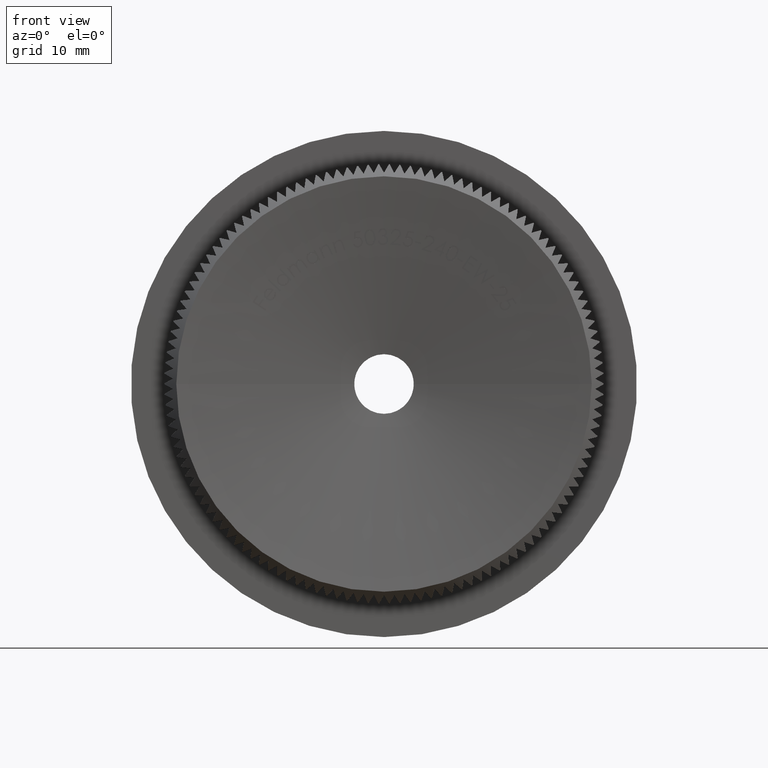
[diagram: clean part render]
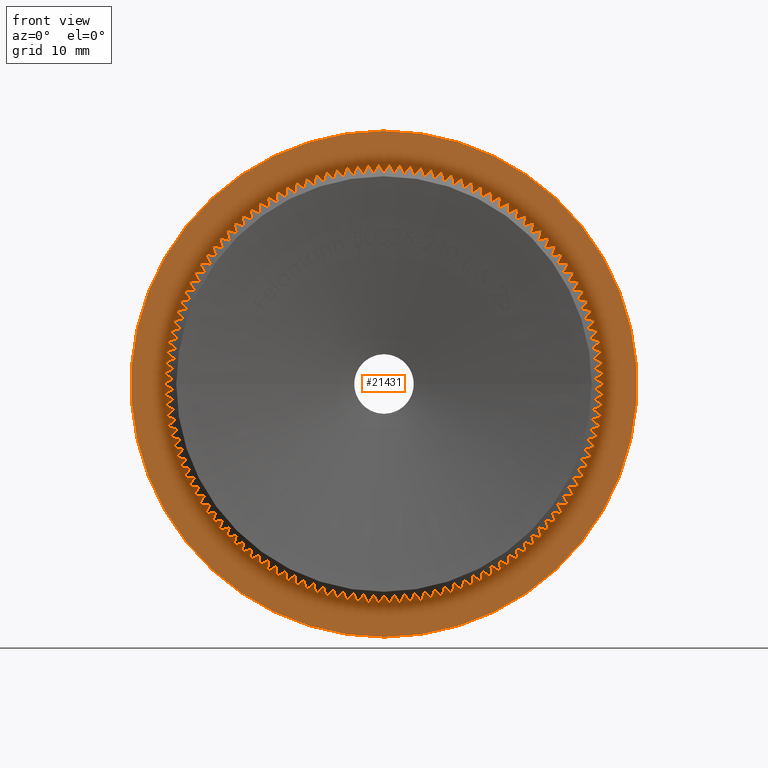
[diagram: same view with one face highlighted and labeled with its STEP entity id]
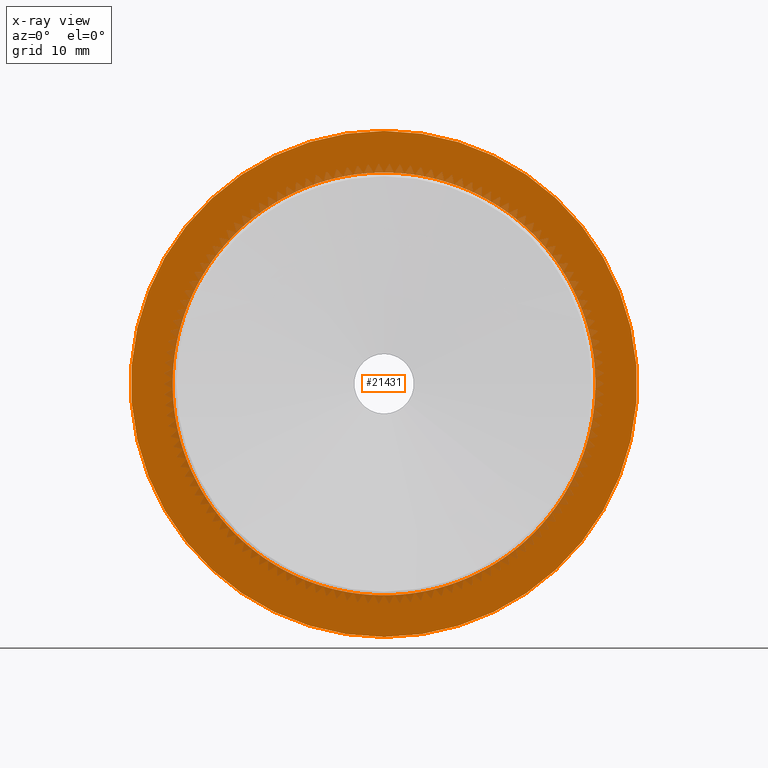
[diagram: x-ray of the same camera — body ghosted, the highlighted face saturated]
A machine part, front view. The second image highlights one B-rep face of the part: STEP entity #21431.
The next image is the same camera in x-ray: the body ghosted, the highlighted face saturated — about 10% of this face is hidden behind the body in this view.
In plain terms, the highlighted planar face has unit normal (0, -1, -0).
Its self-contained STEP definition (entity closure, byte-faithful):
#10 = CARTESIAN_POINT ( 'NONE',  ( 8.225600145174828600, 7.999999999999992900, -15.67257165406175200 ) ) ;
#38 = ORIENTED_EDGE ( 'NONE', *, *, #21697, .F. ) ;
#46 = EDGE_CURVE ( 'NONE', #13891, #5117, #9021, .T. ) ;
#73 = ORIENTED_EDGE ( 'NONE', *, *, #16042, .F. ) ;
#103 = AXIS2_PLACEMENT_3D ( 'NONE', #29222, #5481, #7946 ) ;
#111 = DIRECTION ( 'NONE',  ( -0.0000000000000000000, -1.000000000000000000, -0.0000000000000000000 ) ) ;
#136 = DIRECTION ( 'NONE',  ( -0.0000000000000000000, -1.000000000000000000, -0.0000000000000000000 ) ) ;
#144 = AXIS2_PLACEMENT_3D ( 'NONE', #5684, #831, #10422 ) ;
#232 = EDGE_CURVE ( 'NONE', #18149, #12860, #4236, .T. ) ;
#234 = AXIS2_PLACEMENT_3D ( 'NONE', #12602, #26735, #21682 ) ;
#285 = DIRECTION ( 'NONE',  ( 0.0000000000000000000, 0.0000000000000000000, -1.000000000000000000 ) ) ;
#306 = VERTEX_POINT ( 'NONE', #19992 ) ;
#340 = EDGE_CURVE ( 'NONE', #17014, #9697, #20535, .T. ) ;
#342 = CARTESIAN_POINT ( 'NONE',  ( 8.973189412500360600, 8.000000000000003600, 15.25686310377698400 ) ) ;
#420 = CARTESIAN_POINT ( 'NONE',  ( -8.973189412500568500, 8.000000000000003600, 15.25686310377686200 ) ) ;
#486 = DIRECTION ( 'NONE',  ( 0.0000000000000000000, 0.0000000000000000000, -1.000000000000000000 ) ) ;
#555 = DIRECTION ( 'NONE',  ( 0.0000000000000000000, 0.0000000000000000000, -1.000000000000000000 ) ) ;
#571 = CARTESIAN_POINT ( 'NONE',  ( 0.0000000000000000000, 8.000000000000001800, 0.0000000000000000000 ) ) ;
#580 = ORIENTED_EDGE ( 'NONE', *, *, #27781, .F. ) ;
#610 = DIRECTION ( 'NONE',  ( -0.0000000000000000000, -1.000000000000000000, -0.0000000000000000000 ) ) ;
#632 = EDGE_CURVE ( 'NONE', #12918, #3558, #29402, .T. ) ;
#678 = DIRECTION ( 'NONE',  ( -0.0000000000000000000, -1.000000000000000000, -0.0000000000000000000 ) ) ;
#723 = DIRECTION ( 'NONE',  ( 0.0000000000000000000, 0.0000000000000000000, -1.000000000000000000 ) ) ;
#734 = CARTESIAN_POINT ( 'NONE',  ( -16.22722185710348000, 8.000000000000003600, -7.068753129112883100 ) ) ;
#744 = CIRCLE ( 'NONE', #6111, 17.69999999999999900 ) ;
#818 = AXIS2_PLACEMENT_3D ( 'NONE', #26419, #5718, #8375 ) ;
#826 = AXIS2_PLACEMENT_3D ( 'NONE', #10491, #1205, #26966 ) ;
#831 = DIRECTION ( 'NONE',  ( -0.0000000000000000000, -1.000000000000000000, -0.0000000000000000000 ) ) ;
#860 = CIRCLE ( 'NONE', #8169, 17.69999999999999900 ) ;
#864 = DIRECTION ( 'NONE',  ( -0.0000000000000000000, -1.000000000000000000, -0.0000000000000000000 ) ) ;
#891 = ORIENTED_EDGE ( 'NONE', *, *, #1399, .F. ) ;
#938 = CARTESIAN_POINT ( 'NONE',  ( -14.06402493093340000, 8.000000000000003600, -10.74677638839125600 ) ) ;
#1007 = AXIS2_PLACEMENT_3D ( 'NONE', #1621, #18144, #13556 ) ;
#1015 = ORIENTED_EDGE ( 'NONE', *, *, #14268, .F. ) ;
#1032 = DIRECTION ( 'NONE',  ( 0.0000000000000000000, 0.0000000000000000000, -1.000000000000000000 ) ) ;
#1038 = CARTESIAN_POINT ( 'NONE',  ( 0.0000000000000000000, 8.000000000000001800, 0.0000000000000000000 ) ) ;
#1042 = CIRCLE ( 'NONE', #29027, 17.69999999999999900 ) ;
#1124 = CARTESIAN_POINT ( 'NONE',  ( -17.69483184921941900, 7.999999999999992900, -0.4276982906796046300 ) ) ;
#1131 = DIRECTION ( 'NONE',  ( -0.0000000000000000000, -1.000000000000000000, -0.0000000000000000000 ) ) ;
#1146 = DIRECTION ( 'NONE',  ( 0.0000000000000000000, 0.0000000000000000000, -1.000000000000000000 ) ) ;
#1149 = CARTESIAN_POINT ( 'NONE',  ( 0.0000000000000000000, 8.000000000000000000, 0.0000000000000000000 ) ) ;
#1183 = DIRECTION ( 'NONE',  ( 0.0000000000000000000, 0.0000000000000000000, -1.000000000000000000 ) ) ;
#1193 = ORIENTED_EDGE ( 'NONE', *, *, #3734, .F. ) ;
#1205 = DIRECTION ( 'NONE',  ( -0.0000000000000000000, -1.000000000000000000, -0.0000000000000000000 ) ) ;
#1229 = ORIENTED_EDGE ( 'NONE', *, *, #27574, .F. ) ;
#1248 = DIRECTION ( 'NONE',  ( 0.0000000000000000000, 0.0000000000000000000, -1.000000000000000000 ) ) ;
#1283 = CIRCLE ( 'NONE', #7950, 17.69999999999999900 ) ;
#1308 = ORIENTED_EDGE ( 'NONE', *, *, #14082, .F. ) ;
#1336 = CARTESIAN_POINT ( 'NONE',  ( 0.0000000000000000000, 8.000000000000001800, 0.0000000000000000000 ) ) ;
#1392 = ORIENTED_EDGE ( 'NONE', *, *, #15621, .F. ) ;
#1399 = EDGE_CURVE ( 'NONE', #3628, #16743, #15707, .T. ) ;
#1409 = EDGE_CURVE ( 'NONE', #19952, #6956, #10931, .T. ) ;
#1417 = CARTESIAN_POINT ( 'NONE',  ( 0.0000000000000000000, 8.000000000000003600, -17.69999999999999900 ) ) ;
#1418 = CIRCLE ( 'NONE', #103, 17.69999999999999900 ) ;
#1422 = VERTEX_POINT ( 'NONE', #14958 ) ;
#1461 = VERTEX_POINT ( 'NONE', #15249 ) ;
#1468 = ORIENTED_EDGE ( 'NONE', *, *, #18941, .F. ) ;
#1477 = CIRCLE ( 'NONE', #5618, 17.69999999999999900 ) ;
#1484 = ORIENTED_EDGE ( 'NONE', *, *, #29924, .F. ) ;
#1493 = EDGE_CURVE ( 'NONE', #12514, #19160, #27118, .T. ) ;
#1561 = CIRCLE ( 'NONE', #15300, 17.69999999999999900 ) ;
#1578 = CARTESIAN_POINT ( 'NONE',  ( -11.08347799642807600, 8.000000000000003600, -13.80023606691909800 ) ) ;
#1613 = CARTESIAN_POINT ( 'NONE',  ( 10.40379896557689300, 8.000000000000003600, -14.31960080043648500 ) ) ;
#1621 = CARTESIAN_POINT ( 'NONE',  ( 0.0000000000000000000, 8.000000000000001800, 0.0000000000000000000 ) ) ;
#1661 = ORIENTED_EDGE ( 'NONE', *, *, #24639, .F. ) ;
#1662 = VERTEX_POINT ( 'NONE', #13380 ) ;
#1684 = DIRECTION ( 'NONE',  ( -0.0000000000000000000, -1.000000000000000000, -0.0000000000000000000 ) ) ;
#1733 = CARTESIAN_POINT ( 'NONE',  ( 0.0000000000000000000, 8.000000000000001800, 0.0000000000000000000 ) ) ;
#1762 = AXIS2_PLACEMENT_3D ( 'NONE', #7227, #16514, #7026 ) ;
#1767 = CARTESIAN_POINT ( 'NONE',  ( 0.0000000000000000000, 8.000000000000001800, 0.0000000000000000000 ) ) ;
#1784 = VERTEX_POINT ( 'NONE', #21118 ) ;
#1788 = ORIENTED_EDGE ( 'NONE', *, *, #20600, .F. ) ;
#1831 = ORIENTED_EDGE ( 'NONE', *, *, #29090, .F. ) ;
#1854 = AXIS2_PLACEMENT_3D ( 'NONE', #2921, #28723, #5191 ) ;
#1924 = CIRCLE ( 'NONE', #20430, 17.69999999999999900 ) ;
#1934 = DIRECTION ( 'NONE',  ( -0.0000000000000000000, -1.000000000000000000, -0.0000000000000000000 ) ) ;
#1954 = CIRCLE ( 'NONE', #826, 17.69999999999999900 ) ;
#1970 = CIRCLE ( 'NONE', #20284, 17.69999999999999900 ) ;
#1978 = CARTESIAN_POINT ( 'NONE',  ( 0.0000000000000000000, 8.000000000000001800, 0.0000000000000000000 ) ) ;
#2002 = AXIS2_PLACEMENT_3D ( 'NONE', #21986, #7965, #24470 ) ;
#2015 = CARTESIAN_POINT ( 'NONE',  ( 1.708296400187045300, 8.000000000000003600, -17.61736993450236700 ) ) ;
#2036 = VERTEX_POINT ( 'NONE', #22942 ) ;
#2057 = CARTESIAN_POINT ( 'NONE',  ( 0.0000000000000000000, 8.000000000000001800, 0.0000000000000000000 ) ) ;
#2089 = AXIS2_PLACEMENT_3D ( 'NONE', #1978, #18480, #6715 ) ;
#2106 = CARTESIAN_POINT ( 'NONE',  ( 0.0000000000000000000, 8.000000000000001800, 0.0000000000000000000 ) ) ;
#2132 = DIRECTION ( 'NONE',  ( -0.0000000000000000000, -1.000000000000000000, -0.0000000000000000000 ) ) ;
#2153 = VERTEX_POINT ( 'NONE', #420 ) ;
#2160 = EDGE_CURVE ( 'NONE', #22880, #9028, #7570, .T. ) ;
#2169 = CIRCLE ( 'NONE', #26230, 17.69999999999999900 ) ;
#2177 = DIRECTION ( 'NONE',  ( -0.0000000000000000000, -1.000000000000000000, -0.0000000000000000000 ) ) ;
#2219 = EDGE_CURVE ( 'NONE', #18608, #2376, #21931, .T. ) ;
#2224 = EDGE_CURVE ( 'NONE', #4517, #16517, #19744, .T. ) ;
#2231 = ORIENTED_EDGE ( 'NONE', *, *, #2975, .F. ) ;
#2254 = DIRECTION ( 'NONE',  ( -0.0000000000000000000, -1.000000000000000000, -0.0000000000000000000 ) ) ;
#2272 = EDGE_CURVE ( 'NONE', #26235, #26543, #24148, .T. ) ;
#2344 = CIRCLE ( 'NONE', #10949, 17.69999999999999900 ) ;
#2355 = AXIS2_PLACEMENT_3D ( 'NONE', #25956, #21236, #2668 ) ;
#2376 = VERTEX_POINT ( 'NONE', #6652 ) ;
#2383 = ORIENTED_EDGE ( 'NONE', *, *, #15551, .F. ) ;
#2417 = VERTEX_POINT ( 'NONE', #30123 ) ;
#2453 = EDGE_CURVE ( 'NONE', #6261, #10157, #24520, .T. ) ;
#2455 = CARTESIAN_POINT ( 'NONE',  ( 0.0000000000000000000, 8.000000000000001800, 0.0000000000000000000 ) ) ;
#2483 = DIRECTION ( 'NONE',  ( 0.0000000000000000000, 0.0000000000000000000, -1.000000000000000000 ) ) ;
#2536 = AXIS2_PLACEMENT_3D ( 'NONE', #5370, #5572, #17020 ) ;
#2593 = VERTEX_POINT ( 'NONE', #17221 ) ;
#2628 = EDGE_CURVE ( 'NONE', #19960, #25034, #17915, .T. ) ;
#2645 = ORIENTED_EDGE ( 'NONE', *, *, #16617, .F. ) ;
#2660 = VERTEX_POINT ( 'NONE', #15403 ) ;
#2668 = DIRECTION ( 'NONE',  ( 0.0000000000000000000, 0.0000000000000000000, -1.000000000000000000 ) ) ;
#2678 = AXIS2_PLACEMENT_3D ( 'NONE', #24233, #12377, #10129 ) ;
#2846 = DIRECTION ( 'NONE',  ( -0.0000000000000000000, -1.000000000000000000, -0.0000000000000000000 ) ) ;
#2877 = ORIENTED_EDGE ( 'NONE', *, *, #14137, .F. ) ;
#2921 = CARTESIAN_POINT ( 'NONE',  ( 0.0000000000000000000, 8.000000000000001800, 0.0000000000000000000 ) ) ;
#2975 = EDGE_CURVE ( 'NONE', #1662, #25506, #19716, .T. ) ;
#2984 = CARTESIAN_POINT ( 'NONE',  ( 11.73727105086191700, 8.000000000000003600, 13.24864024262863000 ) ) ;
#3007 = CARTESIAN_POINT ( 'NONE',  ( 15.46923417748944600, 8.000000000000007100, -8.601906414393987200 ) ) ;
#3122 = EDGE_CURVE ( 'NONE', #3556, #19960, #25595, .T. ) ;
#3143 = DIRECTION ( 'NONE',  ( -0.0000000000000000000, -1.000000000000000000, -0.0000000000000000000 ) ) ;
#3152 = CARTESIAN_POINT ( 'NONE',  ( -12.36365116490611800, 8.000000000000003600, -12.66610160517101000 ) ) ;
#3191 = CARTESIAN_POINT ( 'NONE',  ( 17.07829729418090600, 7.999999999999998200, -4.649920594114822900 ) ) ;
#3208 = CARTESIAN_POINT ( 'NONE',  ( 0.0000000000000000000, 8.000000000000001800, 0.0000000000000000000 ) ) ;
#3214 = CARTESIAN_POINT ( 'NONE',  ( 17.69483184921942600, 7.999999999999989300, -0.4276982906793575500 ) ) ;
#3231 = CARTESIAN_POINT ( 'NONE',  ( 0.0000000000000000000, 8.000000000000001800, 0.0000000000000000000 ) ) ;
#3232 = CARTESIAN_POINT ( 'NONE',  ( -0.8551468176014772600, 7.999999999999998200, 17.67933041493218100 ) ) ;
#3241 = CARTESIAN_POINT ( 'NONE',  ( 11.08347799642798700, 7.999999999999992900, 13.80023606691917400 ) ) ;
#3253 = AXIS2_PLACEMENT_3D ( 'NONE', #19920, #22476, #1248 ) ;
#3279 = ORIENTED_EDGE ( 'NONE', *, *, #19799, .F. ) ;
#3292 = DIRECTION ( 'NONE',  ( 0.0000000000000000000, 0.0000000000000000000, -1.000000000000000000 ) ) ;
#3302 = VERTEX_POINT ( 'NONE', #9396 ) ;
#3330 = ORIENTED_EDGE ( 'NONE', *, *, #29107, .F. ) ;
#3347 = CIRCLE ( 'NONE', #13273, 17.69999999999999900 ) ;
#3361 = AXIS2_PLACEMENT_3D ( 'NONE', #13673, #1934, #30184 ) ;
#3371 = CARTESIAN_POINT ( 'NONE',  ( 0.0000000000000000000, 8.000000000000001800, 0.0000000000000000000 ) ) ;
#3414 = CARTESIAN_POINT ( 'NONE',  ( -17.28300709527812600, 8.000000000000010700, 3.819380282790119100 ) ) ;
#3426 = EDGE_CURVE ( 'NONE', #306, #12597, #28196, .T. ) ;
#3435 = CARTESIAN_POINT ( 'NONE',  ( 0.0000000000000000000, 8.000000000000001800, 0.0000000000000000000 ) ) ;
#3513 = DIRECTION ( 'NONE',  ( -0.0000000000000000000, -1.000000000000000000, -0.0000000000000000000 ) ) ;
#3535 = DIRECTION ( 'NONE',  ( -0.0000000000000000000, -1.000000000000000000, -0.0000000000000000000 ) ) ;
#3541 = CARTESIAN_POINT ( 'NONE',  ( 0.0000000000000000000, 8.000000000000001800, 0.0000000000000000000 ) ) ;
#3556 = VERTEX_POINT ( 'NONE', #15134 ) ;
#3558 = VERTEX_POINT ( 'NONE', #5357 ) ;
#3597 = CARTESIAN_POINT ( 'NONE',  ( 0.0000000000000000000, 8.000000000000001800, 0.0000000000000000000 ) ) ;
#3618 = VERTEX_POINT ( 'NONE', #13062 ) ;
#3620 = CARTESIAN_POINT ( 'NONE',  ( 17.57094707153557800, 8.000000000000007100, -2.133499240519040300 ) ) ;
#3628 = VERTEX_POINT ( 'NONE', #1124 ) ;
#3676 = ORIENTED_EDGE ( 'NONE', *, *, #17178, .F. ) ;
#3679 = CARTESIAN_POINT ( 'NONE',  ( 6.674578697883397600, 7.999999999999998200, -16.39329128655259600 ) ) ;
#3734 = EDGE_CURVE ( 'NONE', #21998, #28747, #5355, .T. ) ;
#3772 = CARTESIAN_POINT ( 'NONE',  ( 15.03558245165100400, 8.000000000000007100, -9.339232320678414500 ) ) ;
#3810 = AXIS2_PLACEMENT_3D ( 'NONE', #18867, #16161, #28142 ) ;
#3905 = AXIS2_PLACEMENT_3D ( 'NONE', #3371, #6058, #17519 ) ;
#3922 = DIRECTION ( 'NONE',  ( 0.0000000000000000000, 0.0000000000000000000, -1.000000000000000000 ) ) ;
#3949 = CARTESIAN_POINT ( 'NONE',  ( 9.699821380177477100, 8.000000000000003600, 14.80552144278113300 ) ) ;
#3975 = DIRECTION ( 'NONE',  ( 0.0000000000000000000, 0.0000000000000000000, -1.000000000000000000 ) ) ;
#3997 = DIRECTION ( 'NONE',  ( -0.0000000000000000000, -1.000000000000000000, -0.0000000000000000000 ) ) ;
#4023 = CARTESIAN_POINT ( 'NONE',  ( 0.0000000000000000000, 8.000000000000001800, 0.0000000000000000000 ) ) ;
#4038 = ORIENTED_EDGE ( 'NONE', *, *, #2453, .F. ) ;
#4073 = AXIS2_PLACEMENT_3D ( 'NONE', #19755, #5616, #7973 ) ;
#4126 = AXIS2_PLACEMENT_3D ( 'NONE', #16240, #2132, #23147 ) ;
#4166 = CIRCLE ( 'NONE', #29209, 17.69999999999999900 ) ;
#4185 = ORIENTED_EDGE ( 'NONE', *, *, #11995, .F. ) ;
#4189 = VERTEX_POINT ( 'NONE', #2015 ) ;
#4202 = ORIENTED_EDGE ( 'NONE', *, *, #7611, .F. ) ;
#4236 = CIRCLE ( 'NONE', #23850, 17.69999999999999900 ) ;
#4290 = VERTEX_POINT ( 'NONE', #23339 ) ;
#4517 = VERTEX_POINT ( 'NONE', #3949 ) ;
#4540 = CARTESIAN_POINT ( 'NONE',  ( 0.0000000000000000000, 8.000000000000001800, 0.0000000000000000000 ) ) ;
#4550 = CIRCLE ( 'NONE', #11516, 17.69999999999999900 ) ;
#4613 = AXIS2_PLACEMENT_3D ( 'NONE', #2455, #12028, #9370 ) ;
#4649 = AXIS2_PLACEMENT_3D ( 'NONE', #24603, #22113, #27162 ) ;
#4702 = ORIENTED_EDGE ( 'NONE', *, *, #15242, .F. ) ;
#4723 = CARTESIAN_POINT ( 'NONE',  ( -12.36365116490620700, 8.000000000000003600, 12.66610160517092300 ) ) ;
#4814 = DIRECTION ( 'NONE',  ( -0.0000000000000000000, -1.000000000000000000, -0.0000000000000000000 ) ) ;
#4816 = DIRECTION ( 'NONE',  ( 0.0000000000000000000, 0.0000000000000000000, -1.000000000000000000 ) ) ;
#4823 = CARTESIAN_POINT ( 'NONE',  ( 0.0000000000000000000, 8.000000000000001800, 0.0000000000000000000 ) ) ;
#4863 = CARTESIAN_POINT ( 'NONE',  ( 7.458799607573560300, 8.000000000000003600, 16.05167618705475300 ) ) ;
#4872 = AXIS2_PLACEMENT_3D ( 'NONE', #18649, #13878, #18256 ) ;
#4875 = ORIENTED_EDGE ( 'NONE', *, *, #23156, .F. ) ;
#4893 = VERTEX_POINT ( 'NONE', #10580 ) ;
#4899 = VERTEX_POINT ( 'NONE', #20065 ) ;
#4936 = CIRCLE ( 'NONE', #18819, 17.69999999999999900 ) ;
#4956 = ORIENTED_EDGE ( 'NONE', *, *, #12759, .F. ) ;
#4972 = CARTESIAN_POINT ( 'NONE',  ( -10.40379896557679600, 7.999999999999992900, 14.31960080043655900 ) ) ;
#5054 = DIRECTION ( 'NONE',  ( -0.0000000000000000000, -1.000000000000000000, -0.0000000000000000000 ) ) ;
#5069 = VERTEX_POINT ( 'NONE', #16232 ) ;
#5114 = CARTESIAN_POINT ( 'NONE',  ( 0.0000000000000000000, 8.000000000000001800, 0.0000000000000000000 ) ) ;
#5115 = DIRECTION ( 'NONE',  ( 0.0000000000000000000, 0.0000000000000000000, -1.000000000000000000 ) ) ;
#5117 = VERTEX_POINT ( 'NONE', #26011 ) ;
#5155 = ORIENTED_EDGE ( 'NONE', *, *, #10304, .F. ) ;
#5157 = AXIS2_PLACEMENT_3D ( 'NONE', #1767, #23095, #6515 ) ;
#5174 = CIRCLE ( 'NONE', #14279, 17.69999999999999900 ) ;
#5191 = DIRECTION ( 'NONE',  ( 0.0000000000000000000, 0.0000000000000000000, -1.000000000000000000 ) ) ;
#5197 = AXIS2_PLACEMENT_3D ( 'NONE', #25694, #27770, #25395 ) ;
#5222 = CARTESIAN_POINT ( 'NONE',  ( 0.0000000000000000000, 8.000000000000001800, 0.0000000000000000000 ) ) ;
#5227 = DIRECTION ( 'NONE',  ( -0.0000000000000000000, -1.000000000000000000, -0.0000000000000000000 ) ) ;
#5241 = AXIS2_PLACEMENT_3D ( 'NONE', #18547, #6670, #11616 ) ;
#5275 = DIRECTION ( 'NONE',  ( 0.0000000000000000000, -1.000000000000000000, -0.0000000000000000000 ) ) ;
#5355 = CIRCLE ( 'NONE', #3361, 17.69999999999999900 ) ;
#5357 = CARTESIAN_POINT ( 'NONE',  ( -16.54978749553181700, 8.000000000000003600, -6.276506500652951500 ) ) ;
#5365 = DIRECTION ( 'NONE',  ( 0.0000000000000000000, 0.0000000000000000000, -1.000000000000000000 ) ) ;
#5370 = CARTESIAN_POINT ( 'NONE',  ( 0.0000000000000000000, 8.000000000000001800, 0.0000000000000000000 ) ) ;
#5404 = CARTESIAN_POINT ( 'NONE',  ( 16.22722185710342700, 8.000000000000007100, 7.068753129113000400 ) ) ;
#5429 = DIRECTION ( 'NONE',  ( 0.0000000000000000000, 0.0000000000000000000, -1.000000000000000000 ) ) ;
#5447 = VERTEX_POINT ( 'NONE', #23623 ) ;
#5481 = DIRECTION ( 'NONE',  ( -0.0000000000000000000, -1.000000000000000000, -0.0000000000000000000 ) ) ;
#5512 = EDGE_CURVE ( 'NONE', #28555, #8528, #25552, .T. ) ;
#5519 = EDGE_CURVE ( 'NONE', #18779, #18782, #4936, .T. ) ;
#5536 = DIRECTION ( 'NONE',  ( 0.0000000000000000000, 0.0000000000000000000, -1.000000000000000000 ) ) ;
#5556 = CARTESIAN_POINT ( 'NONE',  ( -15.46923417748933000, 8.000000000000003600, -8.601906414394196800 ) ) ;
#5559 = AXIS2_PLACEMENT_3D ( 'NONE', #29342, #8802, #5724 ) ;
#5572 = DIRECTION ( 'NONE',  ( -0.0000000000000000000, -1.000000000000000000, -0.0000000000000000000 ) ) ;
#5616 = DIRECTION ( 'NONE',  ( -0.0000000000000000000, -1.000000000000000000, -0.0000000000000000000 ) ) ;
#5618 = AXIS2_PLACEMENT_3D ( 'NONE', #3541, #17685, #22807 ) ;
#5684 = CARTESIAN_POINT ( 'NONE',  ( 0.0000000000000000000, 8.000000000000001800, 0.0000000000000000000 ) ) ;
#5692 = CARTESIAN_POINT ( 'NONE',  ( 0.0000000000000000000, 8.000000000000001800, 0.0000000000000000000 ) ) ;
#5694 = DIRECTION ( 'NONE',  ( -0.0000000000000000000, -1.000000000000000000, -0.0000000000000000000 ) ) ;
#5712 = DIRECTION ( 'NONE',  ( 0.0000000000000000000, 0.0000000000000000000, -1.000000000000000000 ) ) ;
#5718 = DIRECTION ( 'NONE',  ( -0.0000000000000000000, -1.000000000000000000, -0.0000000000000000000 ) ) ;
#5724 = DIRECTION ( 'NONE',  ( 0.0000000000000000000, 0.0000000000000000000, -1.000000000000000000 ) ) ;
#5760 = EDGE_CURVE ( 'NONE', #9028, #3302, #11918, .T. ) ;
#5776 = EDGE_CURVE ( 'NONE', #25506, #18740, #1954, .T. ) ;
#5804 = CARTESIAN_POINT ( 'NONE',  ( 0.0000000000000000000, 8.000000000000001800, 0.0000000000000000000 ) ) ;
#5810 = CIRCLE ( 'NONE', #25472, 17.69999999999999900 ) ;
#5931 = CIRCLE ( 'NONE', #234, 17.69999999999999900 ) ;
#5976 = EDGE_CURVE ( 'NONE', #5069, #21853, #15230, .T. ) ;
#5991 = ORIENTED_EDGE ( 'NONE', *, *, #24276, .F. ) ;
#6058 = DIRECTION ( 'NONE',  ( -0.0000000000000000000, -1.000000000000000000, -0.0000000000000000000 ) ) ;
#6074 = VERTEX_POINT ( 'NONE', #7248 ) ;
#6096 = DIRECTION ( 'NONE',  ( -0.0000000000000000000, -1.000000000000000000, -0.0000000000000000000 ) ) ;
#6111 = AXIS2_PLACEMENT_3D ( 'NONE', #27422, #25045, #20617 ) ;
#6155 = EDGE_CURVE ( 'NONE', #6956, #6074, #10450, .T. ) ;
#6213 = DIRECTION ( 'NONE',  ( 0.0000000000000000000, 0.0000000000000000000, -1.000000000000000000 ) ) ;
#6251 = CIRCLE ( 'NONE', #8364, 17.69999999999999900 ) ;
#6261 = VERTEX_POINT ( 'NONE', #29641 ) ;
#6309 = EDGE_CURVE ( 'NONE', #22176, #26235, #25904, .T. ) ;
#6330 = EDGE_LOOP ( 'NONE', ( #26149, #28847 ) ) ;
#6334 = DIRECTION ( 'NONE',  ( 0.0000000000000000000, 0.0000000000000000000, -1.000000000000000000 ) ) ;
#6369 = VERTEX_POINT ( 'NONE', #20537 ) ;
#6392 = DIRECTION ( 'NONE',  ( -0.0000000000000000000, -1.000000000000000000, -0.0000000000000000000 ) ) ;
#6400 = DIRECTION ( 'NONE',  ( 0.0000000000000000000, 0.0000000000000000000, -1.000000000000000000 ) ) ;
#6416 = EDGE_CURVE ( 'NONE', #26483, #27898, #13355, .T. ) ;
#6418 = ORIENTED_EDGE ( 'NONE', *, *, #15646, .F. ) ;
#6464 = CARTESIAN_POINT ( 'NONE',  ( 1.708296400186676100, 8.000000000000007100, 17.61736993450240300 ) ) ;
#6471 = CIRCLE ( 'NONE', #18050, 21.19999999999999900 ) ;
#6515 = DIRECTION ( 'NONE',  ( 0.0000000000000000000, 0.0000000000000000000, -1.000000000000000000 ) ) ;
#6521 = CIRCLE ( 'NONE', #25869, 17.69999999999999900 ) ;
#6524 = DIRECTION ( 'NONE',  ( 0.0000000000000000000, 0.0000000000000000000, -1.000000000000000000 ) ) ;
#6540 = DIRECTION ( 'NONE',  ( -0.0000000000000000000, -1.000000000000000000, -0.0000000000000000000 ) ) ;
#6562 = EDGE_CURVE ( 'NONE', #23933, #19193, #29255, .T. ) ;
#6626 = DIRECTION ( 'NONE',  ( -0.0000000000000000000, -1.000000000000000000, -0.0000000000000000000 ) ) ;
#6647 = EDGE_CURVE ( 'NONE', #20623, #19490, #15197, .T. ) ;
#6652 = CARTESIAN_POINT ( 'NONE',  ( -17.44735163249021100, 8.000000000000003600, -2.979919631842651700 ) ) ;
#6670 = DIRECTION ( 'NONE',  ( -0.0000000000000000000, -1.000000000000000000, -0.0000000000000000000 ) ) ;
#6680 = AXIS2_PLACEMENT_3D ( 'NONE', #19292, #23911, #19391 ) ;
#6685 = VERTEX_POINT ( 'NONE', #3191 ) ;
#6694 = CARTESIAN_POINT ( 'NONE',  ( 0.0000000000000000000, 8.000000000000001800, 0.0000000000000000000 ) ) ;
#6696 = VERTEX_POINT ( 'NONE', #29399 ) ;
#6715 = DIRECTION ( 'NONE',  ( 0.0000000000000000000, 0.0000000000000000000, -1.000000000000000000 ) ) ;
#6737 = ORIENTED_EDGE ( 'NONE', *, *, #17251, .F. ) ;
#6757 = ORIENTED_EDGE ( 'NONE', *, *, #20289, .F. ) ;
#6826 = CARTESIAN_POINT ( 'NONE',  ( -6.674578697883286600, 8.000000000000007100, 16.39329128655263500 ) ) ;
#6863 = CARTESIAN_POINT ( 'NONE',  ( 12.36365116490603500, 8.000000000000003600, 12.66610160517109000 ) ) ;
#6865 = AXIS2_PLACEMENT_3D ( 'NONE', #14837, #610, #723 ) ;
#6870 = VERTEX_POINT ( 'NONE', #25331 ) ;
#6922 = CARTESIAN_POINT ( 'NONE',  ( 0.0000000000000000000, 8.000000000000001800, 0.0000000000000000000 ) ) ;
#6934 = DIRECTION ( 'NONE',  ( -0.0000000000000000000, -1.000000000000000000, -0.0000000000000000000 ) ) ;
#6956 = VERTEX_POINT ( 'NONE', #13512 ) ;
#6958 = VERTEX_POINT ( 'NONE', #20951 ) ;
#7009 = CARTESIAN_POINT ( 'NONE',  ( -2.557456177375223100, 7.999999999999998200, 17.51426327028360700 ) ) ;
#7012 = CARTESIAN_POINT ( 'NONE',  ( 0.0000000000000000000, 8.000000000000001800, 0.0000000000000000000 ) ) ;
#7026 = DIRECTION ( 'NONE',  ( 0.0000000000000000000, 0.0000000000000000000, -1.000000000000000000 ) ) ;
#7093 = AXIS2_PLACEMENT_3D ( 'NONE', #1038, #17345, #21962 ) ;
#7098 = CARTESIAN_POINT ( 'NONE',  ( 2.557456177374980200, 8.000000000000003600, 17.51426327028364200 ) ) ;
#7101 = EDGE_LOOP ( 'NONE', ( #7715, #10072, #18555, #10835, #8937, #1484, #2383, #27605, #5155, #4702, #2877, #4956, #9894, #22829, #15503, #14073, #14130, #1308, #10303, #23249, #580, #19982, #23416, #12636, #2645, #28123, #30421, #25658, #6418, #9805, #2231, #9423, #1193, #16818, #1392, #26978, #18679, #15674, #27334, #26753, #22929, #29842, #13466, #13353, #10031, #73, #1661, #30353, #7962, #22418, #1015, #9225, #4202, #4875, #12855, #29843, #3279, #29931, #12515, #12152, #23637, #16906, #29143, #24528, #16934, #12683, #9554, #22642, #21356, #27333, #15187, #11310, #22481, #6737, #1831, #17119, #15542, #28468, #5991, #18334, #1468, #23160, #23081, #24504, #7124, #25481, #3330, #26178, #6757, #14146, #19458, #7433, #1788, #4038, #16619, #8290, #1229, #891, #7675, #16141, #20503, #24343, #23968, #7694, #25491, #25740, #27611, #23991, #16037, #4185, #3676, #25229, #8910, #7547, #29459, #13895, #38, #8020, #11220, #16563, #12194, #21543, #25236, #16170, #13122, #9740, #23544, #14368, #8113, #8575 ) ) ;
#7124 = ORIENTED_EDGE ( 'NONE', *, *, #14012, .F. ) ;
#7126 = DIRECTION ( 'NONE',  ( -0.0000000000000000000, -1.000000000000000000, -0.0000000000000000000 ) ) ;
#7140 = AXIS2_PLACEMENT_3D ( 'NONE', #9843, #26320, #14271 ) ;
#7217 = CIRCLE ( 'NONE', #8725, 17.69999999999999900 ) ;
#7227 = CARTESIAN_POINT ( 'NONE',  ( 0.0000000000000000000, 8.000000000000001800, 0.0000000000000000000 ) ) ;
#7240 = EDGE_CURVE ( 'NONE', #23107, #5447, #13326, .T. ) ;
#7248 = CARTESIAN_POINT ( 'NONE',  ( -0.8551468176013543600, 7.999999999999998200, -17.67933041493218800 ) ) ;
#7264 = CIRCLE ( 'NONE', #11042, 17.69999999999999900 ) ;
#7274 = CARTESIAN_POINT ( 'NONE',  ( 0.0000000000000000000, 8.000000000000001800, 0.0000000000000000000 ) ) ;
#7295 = CIRCLE ( 'NONE', #28438, 17.69999999999999900 ) ;
#7322 = DIRECTION ( 'NONE',  ( 0.0000000000000000000, 0.0000000000000000000, -1.000000000000000000 ) ) ;
#7352 = DIRECTION ( 'NONE',  ( 0.0000000000000000000, 0.0000000000000000000, -1.000000000000000000 ) ) ;
#7394 = CARTESIAN_POINT ( 'NONE',  ( 0.0000000000000000000, 8.000000000000001800, 0.0000000000000000000 ) ) ;
#7433 = ORIENTED_EDGE ( 'NONE', *, *, #632, .F. ) ;
#7454 = EDGE_CURVE ( 'NONE', #1784, #18149, #24042, .T. ) ;
#7463 = DIRECTION ( 'NONE',  ( -0.0000000000000000000, -1.000000000000000000, -0.0000000000000000000 ) ) ;
#7479 = CIRCLE ( 'NONE', #13899, 17.69999999999999900 ) ;
#7492 = EDGE_CURVE ( 'NONE', #2036, #29693, #1924, .T. ) ;
#7547 = ORIENTED_EDGE ( 'NONE', *, *, #25866, .F. ) ;
#7570 = CIRCLE ( 'NONE', #6865, 17.69999999999999900 ) ;
#7611 = EDGE_CURVE ( 'NONE', #9553, #2036, #12233, .T. ) ;
#7630 = AXIS2_PLACEMENT_3D ( 'NONE', #8299, #26962, #8406 ) ;
#7636 = CARTESIAN_POINT ( 'NONE',  ( 0.0000000000000000000, 8.000000000000001800, 0.0000000000000000000 ) ) ;
#7637 = AXIS2_PLACEMENT_3D ( 'NONE', #2106, #25394, #25592 ) ;
#7662 = CARTESIAN_POINT ( 'NONE',  ( 12.96115539878069700, 8.000000000000003600, -12.05398070052619600 ) ) ;
#7667 = AXIS2_PLACEMENT_3D ( 'NONE', #2057, #25551, #13884 ) ;
#7669 = DIRECTION ( 'NONE',  ( 0.0000000000000000000, 0.0000000000000000000, -1.000000000000000000 ) ) ;
#7675 = ORIENTED_EDGE ( 'NONE', *, *, #16247, .F. ) ;
#7678 = CARTESIAN_POINT ( 'NONE',  ( 0.0000000000000000000, 8.000000000000001800, 0.0000000000000000000 ) ) ;
#7694 = ORIENTED_EDGE ( 'NONE', *, *, #21283, .F. ) ;
#7715 = ORIENTED_EDGE ( 'NONE', *, *, #19836, .F. ) ;
#7831 = DIRECTION ( 'NONE',  ( -0.0000000000000000000, -1.000000000000000000, -0.0000000000000000000 ) ) ;
#7850 = CIRCLE ( 'NONE', #19113, 17.69999999999999900 ) ;
#7946 = DIRECTION ( 'NONE',  ( 0.0000000000000000000, 0.0000000000000000000, -1.000000000000000000 ) ) ;
#7950 = AXIS2_PLACEMENT_3D ( 'NONE', #5692, #12475, #10130 ) ;
#7962 = ORIENTED_EDGE ( 'NONE', *, *, #6309, .F. ) ;
#7965 = DIRECTION ( 'NONE',  ( -0.0000000000000000000, -1.000000000000000000, -0.0000000000000000000 ) ) ;
#7973 = DIRECTION ( 'NONE',  ( 0.0000000000000000000, 0.0000000000000000000, -1.000000000000000000 ) ) ;
#7998 = DIRECTION ( 'NONE',  ( -0.0000000000000000000, -1.000000000000000000, -0.0000000000000000000 ) ) ;
#8014 = CIRCLE ( 'NONE', #18359, 17.69999999999999900 ) ;
#8020 = ORIENTED_EDGE ( 'NONE', *, *, #25572, .F. ) ;
#8080 = AXIS2_PLACEMENT_3D ( 'NONE', #21459, #14551, #29005 ) ;
#8113 = ORIENTED_EDGE ( 'NONE', *, *, #26757, .F. ) ;
#8169 = AXIS2_PLACEMENT_3D ( 'NONE', #7274, #2846, #9774 ) ;
#8251 = DIRECTION ( 'NONE',  ( 0.0000000000000000000, 0.0000000000000000000, -1.000000000000000000 ) ) ;
#8271 = VERTEX_POINT ( 'NONE', #28247 ) ;
#8289 = FACE_OUTER_BOUND ( 'NONE', #6330, .T. ) ;
#8290 = ORIENTED_EDGE ( 'NONE', *, *, #2219, .F. ) ;
#8299 = CARTESIAN_POINT ( 'NONE',  ( 0.0000000000000000000, 8.000000000000001800, 0.0000000000000000000 ) ) ;
#8322 = CIRCLE ( 'NONE', #29880, 17.69999999999999900 ) ;
#8326 = VERTEX_POINT ( 'NONE', #9578 ) ;
#8364 = AXIS2_PLACEMENT_3D ( 'NONE', #11728, #4814, #26140 ) ;
#8375 = DIRECTION ( 'NONE',  ( 0.0000000000000000000, 0.0000000000000000000, -1.000000000000000000 ) ) ;
#8379 = EDGE_CURVE ( 'NONE', #16702, #14092, #21416, .T. ) ;
#8385 = CARTESIAN_POINT ( 'NONE',  ( -8.973189412500460100, 8.000000000000003600, -15.25686310377692600 ) ) ;
#8406 = DIRECTION ( 'NONE',  ( 0.0000000000000000000, 0.0000000000000000000, -1.000000000000000000 ) ) ;
#8408 = CIRCLE ( 'NONE', #18765, 17.69999999999999900 ) ;
#8426 = EDGE_CURVE ( 'NONE', #22462, #9764, #18467, .T. ) ;
#8429 = CIRCLE ( 'NONE', #28845, 17.69999999999999900 ) ;
#8457 = DIRECTION ( 'NONE',  ( -0.0000000000000000000, -1.000000000000000000, -0.0000000000000000000 ) ) ;
#8490 = DIRECTION ( 'NONE',  ( -0.0000000000000000000, -1.000000000000000000, -0.0000000000000000000 ) ) ;
#8515 = CARTESIAN_POINT ( 'NONE',  ( 0.0000000000000000000, 8.000000000000001800, 0.0000000000000000000 ) ) ;
#8528 = VERTEX_POINT ( 'NONE', #3679 ) ;
#8543 = AXIS2_PLACEMENT_3D ( 'NONE', #10634, #8457, #24953 ) ;
#8544 = DIRECTION ( 'NONE',  ( -0.0000000000000000000, -1.000000000000000000, -0.0000000000000000000 ) ) ;
#8575 = ORIENTED_EDGE ( 'NONE', *, *, #24559, .F. ) ;
#8725 = AXIS2_PLACEMENT_3D ( 'NONE', #28942, #3143, #7669 ) ;
#8732 = DIRECTION ( 'NONE',  ( 0.0000000000000000000, 0.0000000000000000000, -1.000000000000000000 ) ) ;
#8789 = DIRECTION ( 'NONE',  ( -0.0000000000000000000, -1.000000000000000000, -0.0000000000000000000 ) ) ;
#8802 = DIRECTION ( 'NONE',  ( -0.0000000000000000000, -1.000000000000000000, -0.0000000000000000000 ) ) ;
#8888 = DIRECTION ( 'NONE',  ( 0.0000000000000000000, 0.0000000000000000000, -1.000000000000000000 ) ) ;
#8910 = ORIENTED_EDGE ( 'NONE', *, *, #46, .F. ) ;
#8917 = CARTESIAN_POINT ( 'NONE',  ( 0.0000000000000000000, 8.000000000000001800, 0.0000000000000000000 ) ) ;
#8936 = CARTESIAN_POINT ( 'NONE',  ( 14.06402493093354500, 8.000000000000003600, -10.74677638839106600 ) ) ;
#8937 = ORIENTED_EDGE ( 'NONE', *, *, #29696, .F. ) ;
#8985 = CARTESIAN_POINT ( 'NONE',  ( 0.0000000000000000000, 8.000000000000001800, 0.0000000000000000000 ) ) ;
#9021 = CIRCLE ( 'NONE', #4649, 17.69999999999999900 ) ;
#9028 = VERTEX_POINT ( 'NONE', #14777 ) ;
#9097 = CARTESIAN_POINT ( 'NONE',  ( 0.0000000000000000000, 8.000000000000001800, 0.0000000000000000000 ) ) ;
#9135 = EDGE_CURVE ( 'NONE', #26284, #10423, #1477, .T. ) ;
#9206 = EDGE_CURVE ( 'NONE', #3558, #10220, #27659, .T. ) ;
#9225 = ORIENTED_EDGE ( 'NONE', *, *, #7492, .F. ) ;
#9335 = DIRECTION ( 'NONE',  ( -0.0000000000000000000, -1.000000000000000000, -0.0000000000000000000 ) ) ;
#9370 = DIRECTION ( 'NONE',  ( 0.0000000000000000000, 0.0000000000000000000, -1.000000000000000000 ) ) ;
#9396 = CARTESIAN_POINT ( 'NONE',  ( 12.96115539878045200, 8.000000000000003600, 12.05398070052646300 ) ) ;
#9406 = CARTESIAN_POINT ( 'NONE',  ( 0.0000000000000000000, 8.000000000000001800, 0.0000000000000000000 ) ) ;
#9409 = DIRECTION ( 'NONE',  ( 0.0000000000000000000, 0.0000000000000000000, -1.000000000000000000 ) ) ;
#9423 = ORIENTED_EDGE ( 'NONE', *, *, #27349, .F. ) ;
#9494 = AXIS2_PLACEMENT_3D ( 'NONE', #10852, #15767, #13393 ) ;
#9512 = DIRECTION ( 'NONE',  ( 0.0000000000000000000, 0.0000000000000000000, -1.000000000000000000 ) ) ;
#9553 = VERTEX_POINT ( 'NONE', #1613 ) ;
#9554 = ORIENTED_EDGE ( 'NONE', *, *, #23338, .F. ) ;
#9578 = CARTESIAN_POINT ( 'NONE',  ( -6.674578697883177400, 7.999999999999989300, -16.39329128655268900 ) ) ;
#9615 = DIRECTION ( 'NONE',  ( 0.0000000000000000000, 0.0000000000000000000, -1.000000000000000000 ) ) ;
#9630 = VERTEX_POINT ( 'NONE', #20379 ) ;
#9675 = DIRECTION ( 'NONE',  ( -0.0000000000000000000, -1.000000000000000000, -0.0000000000000000000 ) ) ;
#9697 = VERTEX_POINT ( 'NONE', #23876 ) ;
#9723 = DIRECTION ( 'NONE',  ( 0.0000000000000000000, 0.0000000000000000000, -1.000000000000000000 ) ) ;
#9740 = ORIENTED_EDGE ( 'NONE', *, *, #17406, .F. ) ;
#9746 = CARTESIAN_POINT ( 'NONE',  ( 14.06402493093332000, 8.000000000000003600, 10.74677638839136100 ) ) ;
#9764 = VERTEX_POINT ( 'NONE', #24384 ) ;
#9774 = DIRECTION ( 'NONE',  ( 0.0000000000000000000, 0.0000000000000000000, -1.000000000000000000 ) ) ;
#9784 = CARTESIAN_POINT ( 'NONE',  ( -4.235887257889782400, 8.000000000000007100, 17.18567016844111700 ) ) ;
#9805 = ORIENTED_EDGE ( 'NONE', *, *, #5776, .F. ) ;
#9828 = VERTEX_POINT ( 'NONE', #26950 ) ;
#9843 = CARTESIAN_POINT ( 'NONE',  ( 0.0000000000000000000, 8.000000000000001800, 0.0000000000000000000 ) ) ;
#9854 = CARTESIAN_POINT ( 'NONE',  ( 4.235887257889904900, 7.999999999999992900, -17.18567016844109200 ) ) ;
#9894 = ORIENTED_EDGE ( 'NONE', *, *, #2224, .F. ) ;
#9935 = VERTEX_POINT ( 'NONE', #4863 ) ;
#9938 = DIRECTION ( 'NONE',  ( 0.0000000000000000000, 0.0000000000000000000, -1.000000000000000000 ) ) ;
#10016 = CARTESIAN_POINT ( 'NONE',  ( 16.54978749553190200, 8.000000000000003600, -6.276506500652724100 ) ) ;
#10031 = ORIENTED_EDGE ( 'NONE', *, *, #18185, .F. ) ;
#10038 = AXIS2_PLACEMENT_3D ( 'NONE', #19719, #26797, #24641 ) ;
#10071 = CIRCLE ( 'NONE', #20835, 17.69999999999999900 ) ;
#10072 = ORIENTED_EDGE ( 'NONE', *, *, #27665, .F. ) ;
#10120 = CARTESIAN_POINT ( 'NONE',  ( 0.0000000000000000000, 8.000000000000001800, 0.0000000000000000000 ) ) ;
#10129 = DIRECTION ( 'NONE',  ( 0.0000000000000000000, 0.0000000000000000000, -1.000000000000000000 ) ) ;
#10130 = DIRECTION ( 'NONE',  ( 0.0000000000000000000, 0.0000000000000000000, -1.000000000000000000 ) ) ;
#10142 = AXIS2_PLACEMENT_3D ( 'NONE', #21754, #5054, #7322 ) ;
#10147 = DIRECTION ( 'NONE',  ( -0.0000000000000000000, -1.000000000000000000, -0.0000000000000000000 ) ) ;
#10157 = VERTEX_POINT ( 'NONE', #24239 ) ;
#10220 = VERTEX_POINT ( 'NONE', #734 ) ;
#10226 = EDGE_CURVE ( 'NONE', #10653, #23933, #18072, .T. ) ;
#10229 = DIRECTION ( 'NONE',  ( 0.0000000000000000000, 0.0000000000000000000, -1.000000000000000000 ) ) ;
#10259 = EDGE_CURVE ( 'NONE', #13005, #21998, #1418, .T. ) ;
#10274 = CARTESIAN_POINT ( 'NONE',  ( 2.596251214192388800E-015, 8.000000000000000000, 21.19999999999999900 ) ) ;
#10294 = CARTESIAN_POINT ( 'NONE',  ( 15.46923417748926800, 7.999999999999992900, 8.601906414394314000 ) ) ;
#10303 = ORIENTED_EDGE ( 'NONE', *, *, #5760, .F. ) ;
#10304 = EDGE_CURVE ( 'NONE', #30035, #12185, #25401, .T. ) ;
#10321 = DIRECTION ( 'NONE',  ( -0.0000000000000000000, -1.000000000000000000, -0.0000000000000000000 ) ) ;
#10413 = DIRECTION ( 'NONE',  ( 0.0000000000000000000, 0.0000000000000000000, -1.000000000000000000 ) ) ;
#10422 = DIRECTION ( 'NONE',  ( 0.0000000000000000000, 0.0000000000000000000, -1.000000000000000000 ) ) ;
#10423 = VERTEX_POINT ( 'NONE', #3620 ) ;
#10440 = CIRCLE ( 'NONE', #15534, 17.69999999999999900 ) ;
#10450 = CIRCLE ( 'NONE', #2002, 17.69999999999999900 ) ;
#10491 = CARTESIAN_POINT ( 'NONE',  ( 0.0000000000000000000, 8.000000000000001800, 0.0000000000000000000 ) ) ;
#10519 = DIRECTION ( 'NONE',  ( -0.0000000000000000000, -1.000000000000000000, -0.0000000000000000000 ) ) ;
#10580 = CARTESIAN_POINT ( 'NONE',  ( -15.46923417748939000, 7.999999999999998200, 8.601906414394093800 ) ) ;
#10607 = VERTEX_POINT ( 'NONE', #21433 ) ;
#10634 = CARTESIAN_POINT ( 'NONE',  ( 0.0000000000000000000, 8.000000000000001800, 0.0000000000000000000 ) ) ;
#10653 = VERTEX_POINT ( 'NONE', #7098 ) ;
#10689 = CARTESIAN_POINT ( 'NONE',  ( 0.0000000000000000000, 8.000000000000001800, 0.0000000000000000000 ) ) ;
#10719 = AXIS2_PLACEMENT_3D ( 'NONE', #4540, #25667, #28064 ) ;
#10753 = CIRCLE ( 'NONE', #21492, 17.69999999999999900 ) ;
#10783 = EDGE_CURVE ( 'NONE', #18888, #22176, #23926, .T. ) ;
#10819 = AXIS2_PLACEMENT_3D ( 'NONE', #20675, #6540, #27766 ) ;
#10835 = ORIENTED_EDGE ( 'NONE', *, *, #10226, .F. ) ;
#10852 = CARTESIAN_POINT ( 'NONE',  ( 0.0000000000000000000, 8.000000000000001800, 0.0000000000000000000 ) ) ;
#10931 = CIRCLE ( 'NONE', #10038, 17.69999999999999900 ) ;
#10949 = AXIS2_PLACEMENT_3D ( 'NONE', #3597, #26893, #29201 ) ;
#11042 = AXIS2_PLACEMENT_3D ( 'NONE', #13319, #22719, #20141 ) ;
#11053 = EDGE_CURVE ( 'NONE', #13469, #23579, #11356, .T. ) ;
#11114 = DIRECTION ( 'NONE',  ( -0.0000000000000000000, -1.000000000000000000, -0.0000000000000000000 ) ) ;
#11181 = DIRECTION ( 'NONE',  ( -0.0000000000000000000, -1.000000000000000000, -0.0000000000000000000 ) ) ;
#11210 = CIRCLE ( 'NONE', #16104, 17.69999999999999900 ) ;
#11216 = EDGE_CURVE ( 'NONE', #21818, #14329, #26101, .T. ) ;
#11220 = ORIENTED_EDGE ( 'NONE', *, *, #26122, .F. ) ;
#11259 = AXIS2_PLACEMENT_3D ( 'NONE', #24144, #10147, #9938 ) ;
#11270 = CARTESIAN_POINT ( 'NONE',  ( 0.0000000000000000000, 8.000000000000001800, 0.0000000000000000000 ) ) ;
#11274 = CARTESIAN_POINT ( 'NONE',  ( -11.73727105086209700, 8.000000000000003600, 13.24864024262847200 ) ) ;
#11299 = AXIS2_PLACEMENT_3D ( 'NONE', #27144, #8490, #1183 ) ;
#11310 = ORIENTED_EDGE ( 'NONE', *, *, #27798, .F. ) ;
#11316 = CARTESIAN_POINT ( 'NONE',  ( -8.225600145174608400, 8.000000000000010700, -15.67257165406186400 ) ) ;
#11356 = CIRCLE ( 'NONE', #2678, 17.69999999999999900 ) ;
#11367 = DIRECTION ( 'NONE',  ( 0.0000000000000000000, 0.0000000000000000000, -1.000000000000000000 ) ) ;
#11516 = AXIS2_PLACEMENT_3D ( 'NONE', #14948, #26787, #24215 ) ;
#11523 = AXIS2_PLACEMENT_3D ( 'NONE', #5114, #678, #5429 ) ;
#11551 = CARTESIAN_POINT ( 'NONE',  ( 0.0000000000000000000, 8.000000000000001800, 0.0000000000000000000 ) ) ;
#11565 = CARTESIAN_POINT ( 'NONE',  ( 0.0000000000000000000, 8.000000000000001800, 0.0000000000000000000 ) ) ;
#11616 = DIRECTION ( 'NONE',  ( 0.0000000000000000000, 0.0000000000000000000, -1.000000000000000000 ) ) ;
#11728 = CARTESIAN_POINT ( 'NONE',  ( 0.0000000000000000000, 8.000000000000001800, 0.0000000000000000000 ) ) ;
#11765 = EDGE_CURVE ( 'NONE', #29762, #15608, #28319, .T. ) ;
#11770 = DIRECTION ( 'NONE',  ( 0.0000000000000000000, 0.0000000000000000000, -1.000000000000000000 ) ) ;
#11801 = CIRCLE ( 'NONE', #10142, 17.69999999999999900 ) ;
#11918 = CIRCLE ( 'NONE', #20387, 17.69999999999999900 ) ;
#11981 = CARTESIAN_POINT ( 'NONE',  ( 0.0000000000000000000, 8.000000000000001800, 0.0000000000000000000 ) ) ;
#11995 = EDGE_CURVE ( 'NONE', #8271, #4893, #26470, .T. ) ;
#12028 = DIRECTION ( 'NONE',  ( -0.0000000000000000000, -1.000000000000000000, -0.0000000000000000000 ) ) ;
#12059 = CARTESIAN_POINT ( 'NONE',  ( 0.0000000000000000000, 8.000000000000001800, 0.0000000000000000000 ) ) ;
#12074 = VERTEX_POINT ( 'NONE', #5556 ) ;
#12077 = CIRCLE ( 'NONE', #9494, 17.69999999999999900 ) ;
#12110 = CARTESIAN_POINT ( 'NONE',  ( -12.96115539878061700, 7.999999999999992900, 12.05398070052628700 ) ) ;
#12151 = CIRCLE ( 'NONE', #26511, 17.69999999999999900 ) ;
#12152 = ORIENTED_EDGE ( 'NONE', *, *, #12717, .F. ) ;
#12185 = VERTEX_POINT ( 'NONE', #17640 ) ;
#12194 = ORIENTED_EDGE ( 'NONE', *, *, #29500, .F. ) ;
#12202 = CARTESIAN_POINT ( 'NONE',  ( 0.0000000000000000000, 8.000000000000001800, 0.0000000000000000000 ) ) ;
#12228 = CARTESIAN_POINT ( 'NONE',  ( -3.400642897160526300, 8.000000000000010700, -17.37025123266763800 ) ) ;
#12233 = CIRCLE ( 'NONE', #11523, 17.69999999999999900 ) ;
#12237 = CIRCLE ( 'NONE', #5241, 17.69999999999999900 ) ;
#12282 = AXIS2_PLACEMENT_3D ( 'NONE', #7012, #25875, #23198 ) ;
#12372 = DIRECTION ( 'NONE',  ( -0.0000000000000000000, -1.000000000000000000, -0.0000000000000000000 ) ) ;
#12377 = DIRECTION ( 'NONE',  ( -0.0000000000000000000, -1.000000000000000000, -0.0000000000000000000 ) ) ;
#12419 = CIRCLE ( 'NONE', #25292, 17.69999999999999900 ) ;
#12475 = DIRECTION ( 'NONE',  ( -0.0000000000000000000, -1.000000000000000000, -0.0000000000000000000 ) ) ;
#12514 = VERTEX_POINT ( 'NONE', #24281 ) ;
#12515 = ORIENTED_EDGE ( 'NONE', *, *, #5512, .F. ) ;
#12542 = DIRECTION ( 'NONE',  ( 0.0000000000000000000, 0.0000000000000000000, -1.000000000000000000 ) ) ;
#12585 = AXIS2_PLACEMENT_3D ( 'NONE', #6694, #30420, #18567 ) ;
#12597 = VERTEX_POINT ( 'NONE', #12924 ) ;
#12602 = CARTESIAN_POINT ( 'NONE',  ( 0.0000000000000000000, 8.000000000000001800, 0.0000000000000000000 ) ) ;
#12612 = DIRECTION ( 'NONE',  ( 0.0000000000000000000, 0.0000000000000000000, -1.000000000000000000 ) ) ;
#12631 = DIRECTION ( 'NONE',  ( -0.0000000000000000000, -1.000000000000000000, -0.0000000000000000000 ) ) ;
#12636 = ORIENTED_EDGE ( 'NONE', *, *, #5519, .F. ) ;
#12683 = ORIENTED_EDGE ( 'NONE', *, *, #21354, .F. ) ;
#12689 = DIRECTION ( 'NONE',  ( 0.0000000000000000000, 0.0000000000000000000, -1.000000000000000000 ) ) ;
#12717 = EDGE_CURVE ( 'NONE', #1422, #28555, #16865, .T. ) ;
#12757 = DIRECTION ( 'NONE',  ( -0.0000000000000000000, -1.000000000000000000, -0.0000000000000000000 ) ) ;
#12759 = EDGE_CURVE ( 'NONE', #16517, #27937, #30148, .T. ) ;
#12774 = EDGE_CURVE ( 'NONE', #4893, #6696, #15365, .T. ) ;
#12787 = CARTESIAN_POINT ( 'NONE',  ( 3.400642897160769200, 8.000000000000003600, -17.37025123266759200 ) ) ;
#12817 = AXIS2_PLACEMENT_3D ( 'NONE', #22055, #10321, #26712 ) ;
#12831 = DIRECTION ( 'NONE',  ( 0.0000000000000000000, 0.0000000000000000000, -1.000000000000000000 ) ) ;
#12855 = ORIENTED_EDGE ( 'NONE', *, *, #14627, .F. ) ;
#12859 = CARTESIAN_POINT ( 'NONE',  ( 0.0000000000000000000, 8.000000000000001800, 0.0000000000000000000 ) ) ;
#12860 = VERTEX_POINT ( 'NONE', #19227 ) ;
#12918 = VERTEX_POINT ( 'NONE', #21665 ) ;
#12924 = CARTESIAN_POINT ( 'NONE',  ( 16.22722185710357600, 7.999999999999998200, -7.068753129112660200 ) ) ;
#12935 = DIRECTION ( 'NONE',  ( 0.0000000000000000000, 0.0000000000000000000, -1.000000000000000000 ) ) ;
#12946 = CIRCLE ( 'NONE', #12585, 17.69999999999999900 ) ;
#12971 = CARTESIAN_POINT ( 'NONE',  ( -15.86675679013392300, 8.000000000000007100, -7.844490357106640700 ) ) ;
#12976 = DIRECTION ( 'NONE',  ( -0.0000000000000000000, -1.000000000000000000, -0.0000000000000000000 ) ) ;
#13005 = VERTEX_POINT ( 'NONE', #3214 ) ;
#13062 = CARTESIAN_POINT ( 'NONE',  ( 17.28300709527815500, 8.000000000000007100, -3.819380282789998300 ) ) ;
#13122 = ORIENTED_EDGE ( 'NONE', *, *, #23253, .F. ) ;
#13136 = AXIS2_PLACEMENT_3D ( 'NONE', #24985, #1684, #6334 ) ;
#13168 = DIRECTION ( 'NONE',  ( -0.0000000000000000000, -1.000000000000000000, -0.0000000000000000000 ) ) ;
#13273 = AXIS2_PLACEMENT_3D ( 'NONE', #18191, #13411, #8888 ) ;
#13319 = CARTESIAN_POINT ( 'NONE',  ( 0.0000000000000000000, 8.000000000000001800, 0.0000000000000000000 ) ) ;
#13326 = CIRCLE ( 'NONE', #20198, 17.69999999999999900 ) ;
#13353 = ORIENTED_EDGE ( 'NONE', *, *, #24825, .F. ) ;
#13355 = CIRCLE ( 'NONE', #21776, 21.19999999999999900 ) ;
#13380 = CARTESIAN_POINT ( 'NONE',  ( 17.57094707153553500, 7.999999999999998200, 2.133499240519408900 ) ) ;
#13393 = DIRECTION ( 'NONE',  ( 0.0000000000000000000, 0.0000000000000000000, -1.000000000000000000 ) ) ;
#13411 = DIRECTION ( 'NONE',  ( -0.0000000000000000000, -1.000000000000000000, -0.0000000000000000000 ) ) ;
#13466 = ORIENTED_EDGE ( 'NONE', *, *, #3426, .F. ) ;
#13469 = VERTEX_POINT ( 'NONE', #26961 ) ;
#13474 = CARTESIAN_POINT ( 'NONE',  ( 17.44735163249025000, 8.000000000000007100, -2.979919631842407900 ) ) ;
#13512 = CARTESIAN_POINT ( 'NONE',  ( -1.708296400186799300, 8.000000000000003600, -17.61736993450239200 ) ) ;
#13537 = CARTESIAN_POINT ( 'NONE',  ( 0.0000000000000000000, 8.000000000000001800, 0.0000000000000000000 ) ) ;
#13556 = DIRECTION ( 'NONE',  ( 0.0000000000000000000, 0.0000000000000000000, -1.000000000000000000 ) ) ;
#13557 = CARTESIAN_POINT ( 'NONE',  ( 0.0000000000000000000, 8.000000000000001800, 0.0000000000000000000 ) ) ;
#13585 = CARTESIAN_POINT ( 'NONE',  ( 0.0000000000000000000, 8.000000000000001800, 0.0000000000000000000 ) ) ;
#13593 = VERTEX_POINT ( 'NONE', #12228 ) ;
#13607 = VERTEX_POINT ( 'NONE', #9784 ) ;
#13673 = CARTESIAN_POINT ( 'NONE',  ( 0.0000000000000000000, 8.000000000000001800, 0.0000000000000000000 ) ) ;
#13790 = DIRECTION ( 'NONE',  ( 0.0000000000000000000, 0.0000000000000000000, -1.000000000000000000 ) ) ;
#13791 = DIRECTION ( 'NONE',  ( 0.0000000000000000000, 0.0000000000000000000, -1.000000000000000000 ) ) ;
#13840 = CARTESIAN_POINT ( 'NONE',  ( 0.0000000000000000000, 8.000000000000001800, 0.0000000000000000000 ) ) ;
#13857 = AXIS2_PLACEMENT_3D ( 'NONE', #14451, #5275, #9723 ) ;
#13878 = DIRECTION ( 'NONE',  ( -0.0000000000000000000, -1.000000000000000000, -0.0000000000000000000 ) ) ;
#13884 = DIRECTION ( 'NONE',  ( 0.0000000000000000000, 0.0000000000000000000, -1.000000000000000000 ) ) ;
#13891 = VERTEX_POINT ( 'NONE', #30482 ) ;
#13895 = ORIENTED_EDGE ( 'NONE', *, *, #6647, .F. ) ;
#13899 = AXIS2_PLACEMENT_3D ( 'NONE', #571, #19866, #29055 ) ;
#13942 = AXIS2_PLACEMENT_3D ( 'NONE', #23787, #9675, #4816 ) ;
#13965 = VERTEX_POINT ( 'NONE', #23862 ) ;
#13977 = CIRCLE ( 'NONE', #23161, 17.69999999999999900 ) ;
#13990 = CARTESIAN_POINT ( 'NONE',  ( 0.0000000000000000000, 8.000000000000001800, 0.0000000000000000000 ) ) ;
#13999 = DIRECTION ( 'NONE',  ( -0.0000000000000000000, -1.000000000000000000, -0.0000000000000000000 ) ) ;
#14012 = EDGE_CURVE ( 'NONE', #18405, #3556, #29558, .T. ) ;
#14042 = EDGE_CURVE ( 'NONE', #2153, #19769, #5931, .T. ) ;
#14073 = ORIENTED_EDGE ( 'NONE', *, *, #17637, .F. ) ;
#14082 = EDGE_CURVE ( 'NONE', #3302, #20975, #26196, .T. ) ;
#14092 = VERTEX_POINT ( 'NONE', #17583 ) ;
#14130 = ORIENTED_EDGE ( 'NONE', *, *, #23624, .F. ) ;
#14137 = EDGE_CURVE ( 'NONE', #27937, #9935, #3347, .T. ) ;
#14146 = ORIENTED_EDGE ( 'NONE', *, *, #26956, .F. ) ;
#14183 = EDGE_CURVE ( 'NONE', #21331, #26918, #27694, .T. ) ;
#14244 = VERTEX_POINT ( 'NONE', #15586 ) ;
#14248 = CARTESIAN_POINT ( 'NONE',  ( 11.73727105086219100, 8.000000000000003600, -13.24864024262838800 ) ) ;
#14268 = EDGE_CURVE ( 'NONE', #29693, #18888, #14407, .T. ) ;
#14271 = DIRECTION ( 'NONE',  ( 0.0000000000000000000, 0.0000000000000000000, -1.000000000000000000 ) ) ;
#14279 = AXIS2_PLACEMENT_3D ( 'NONE', #29008, #5694, #12689 ) ;
#14329 = VERTEX_POINT ( 'NONE', #28274 ) ;
#14339 = EDGE_CURVE ( 'NONE', #6685, #3618, #16983, .T. ) ;
#14353 = CIRCLE ( 'NONE', #17270, 17.69999999999999900 ) ;
#14368 = ORIENTED_EDGE ( 'NONE', *, *, #23737, .F. ) ;
#14407 = CIRCLE ( 'NONE', #10719, 17.69999999999999900 ) ;
#14428 = EDGE_CURVE ( 'NONE', #29820, #5069, #5174, .T. ) ;
#14451 = CARTESIAN_POINT ( 'NONE',  ( 21.19999999999999900, 8.000000000000000000, 0.0000000000000000000 ) ) ;
#14454 = CARTESIAN_POINT ( 'NONE',  ( 17.65350474953938000, 8.000000000000007100, 1.282095962863382100 ) ) ;
#14505 = CIRCLE ( 'NONE', #28794, 17.69999999999999900 ) ;
#14530 = DIRECTION ( 'NONE',  ( -0.0000000000000000000, -1.000000000000000000, -0.0000000000000000000 ) ) ;
#14551 = DIRECTION ( 'NONE',  ( -0.0000000000000000000, -1.000000000000000000, -0.0000000000000000000 ) ) ;
#14564 = FACE_BOUND ( 'NONE', #7101, .T. ) ;
#14577 = CARTESIAN_POINT ( 'NONE',  ( 0.0000000000000000000, 8.000000000000001800, 0.0000000000000000000 ) ) ;
#14623 = CIRCLE ( 'NONE', #5559, 17.69999999999999900 ) ;
#14627 = EDGE_CURVE ( 'NONE', #5447, #6958, #14758, .T. ) ;
#14649 = DIRECTION ( 'NONE',  ( 0.0000000000000000000, 0.0000000000000000000, -1.000000000000000000 ) ) ;
#14689 = CARTESIAN_POINT ( 'NONE',  ( -14.56681442631767200, 8.000000000000003600, -10.05474601714152700 ) ) ;
#14758 = CIRCLE ( 'NONE', #8543, 17.69999999999999900 ) ;
#14777 = CARTESIAN_POINT ( 'NONE',  ( 13.52838825366138500, 8.000000000000003600, 11.41370716543037600 ) ) ;
#14785 = EDGE_CURVE ( 'NONE', #14092, #4899, #17356, .T. ) ;
#14837 = CARTESIAN_POINT ( 'NONE',  ( 0.0000000000000000000, 8.000000000000001800, 0.0000000000000000000 ) ) ;
#14838 = VERTEX_POINT ( 'NONE', #23282 ) ;
#14863 = AXIS2_PLACEMENT_3D ( 'NONE', #19416, #12372, #23731 ) ;
#14890 = CARTESIAN_POINT ( 'NONE',  ( -11.08347799642817200, 8.000000000000003600, 13.80023606691902100 ) ) ;
#14913 = AXIS2_PLACEMENT_3D ( 'NONE', #3208, #22063, #8251 ) ;
#14930 = CARTESIAN_POINT ( 'NONE',  ( 0.0000000000000000000, 8.000000000000001800, 0.0000000000000000000 ) ) ;
#14948 = CARTESIAN_POINT ( 'NONE',  ( 0.0000000000000000000, 8.000000000000001800, 0.0000000000000000000 ) ) ;
#14958 = CARTESIAN_POINT ( 'NONE',  ( 5.061238507656932000, 8.000000000000007100, -16.96095117523220400 ) ) ;
#15034 = AXIS2_PLACEMENT_3D ( 'NONE', #14577, #7463, #16853 ) ;
#15036 = DIRECTION ( 'NONE',  ( -0.0000000000000000000, -1.000000000000000000, -0.0000000000000000000 ) ) ;
#15128 = CARTESIAN_POINT ( 'NONE',  ( -9.699821380177676000, 8.000000000000007100, 14.80552144278100200 ) ) ;
#15134 = CARTESIAN_POINT ( 'NONE',  ( -13.52838825366145900, 8.000000000000003600, -11.41370716543028900 ) ) ;
#15164 = AXIS2_PLACEMENT_3D ( 'NONE', #20104, #6096, #1146 ) ;
#15187 = ORIENTED_EDGE ( 'NONE', *, *, #30048, .F. ) ;
#15197 = CIRCLE ( 'NONE', #18060, 17.69999999999999900 ) ;
#15230 = CIRCLE ( 'NONE', #7140, 17.69999999999999900 ) ;
#15242 = EDGE_CURVE ( 'NONE', #9935, #30035, #12151, .T. ) ;
#15249 = CARTESIAN_POINT ( 'NONE',  ( 14.56681442631780700, 8.000000000000003600, -10.05474601714133000 ) ) ;
#15265 = EDGE_CURVE ( 'NONE', #16902, #17771, #11801, .T. ) ;
#15297 = CIRCLE ( 'NONE', #11299, 17.69999999999999900 ) ;
#15300 = AXIS2_PLACEMENT_3D ( 'NONE', #9406, #19089, #28588 ) ;
#15325 = EDGE_CURVE ( 'NONE', #4899, #22126, #30629, .T. ) ;
#15362 = DIRECTION ( 'NONE',  ( 0.0000000000000000000, 0.0000000000000000000, -1.000000000000000000 ) ) ;
#15365 = CIRCLE ( 'NONE', #10819, 17.69999999999999900 ) ;
#15367 = CIRCLE ( 'NONE', #1762, 17.69999999999999900 ) ;
#15403 = CARTESIAN_POINT ( 'NONE',  ( 10.40379896557660000, 8.000000000000003600, 14.31960080043669600 ) ) ;
#15486 = CARTESIAN_POINT ( 'NONE',  ( -10.40379896557669400, 8.000000000000003600, -14.31960080043662800 ) ) ;
#15503 = ORIENTED_EDGE ( 'NONE', *, *, #19212, .F. ) ;
#15509 = VERTEX_POINT ( 'NONE', #12971 ) ;
#15534 = AXIS2_PLACEMENT_3D ( 'NONE', #5222, #26668, #16984 ) ;
#15542 = ORIENTED_EDGE ( 'NONE', *, *, #27497, .F. ) ;
#15551 = EDGE_CURVE ( 'NONE', #9828, #9630, #19539, .T. ) ;
#15554 = DIRECTION ( 'NONE',  ( -0.0000000000000000000, -1.000000000000000000, -0.0000000000000000000 ) ) ;
#15561 = DIRECTION ( 'NONE',  ( -0.0000000000000000000, -1.000000000000000000, -0.0000000000000000000 ) ) ;
#15586 = CARTESIAN_POINT ( 'NONE',  ( 7.458799607573889800, 7.999999999999998200, -16.05167618705460000 ) ) ;
#15608 = VERTEX_POINT ( 'NONE', #18509 ) ;
#15619 = VERTEX_POINT ( 'NONE', #18307 ) ;
#15621 = EDGE_CURVE ( 'NONE', #2593, #13005, #19894, .T. ) ;
#15635 = AXIS2_PLACEMENT_3D ( 'NONE', #9097, #30447, #9409 ) ;
#15646 = EDGE_CURVE ( 'NONE', #18740, #16702, #18803, .T. ) ;
#15674 = ORIENTED_EDGE ( 'NONE', *, *, #29850, .F. ) ;
#15692 = CARTESIAN_POINT ( 'NONE',  ( -14.56681442631773900, 8.000000000000007100, 10.05474601714142800 ) ) ;
#15707 = CIRCLE ( 'NONE', #144, 17.69999999999999900 ) ;
#15750 = CARTESIAN_POINT ( 'NONE',  ( 0.0000000000000000000, 8.000000000000001800, 0.0000000000000000000 ) ) ;
#15766 = CIRCLE ( 'NONE', #24892, 17.69999999999999900 ) ;
#15767 = DIRECTION ( 'NONE',  ( -0.0000000000000000000, -1.000000000000000000, -0.0000000000000000000 ) ) ;
#15819 = CIRCLE ( 'NONE', #22028, 17.69999999999999900 ) ;
#15875 = EDGE_CURVE ( 'NONE', #2376, #6261, #13977, .T. ) ;
#15969 = DIRECTION ( 'NONE',  ( -0.0000000000000000000, -1.000000000000000000, -0.0000000000000000000 ) ) ;
#15995 = DIRECTION ( 'NONE',  ( -0.0000000000000000000, -1.000000000000000000, -0.0000000000000000000 ) ) ;
#16005 = DIRECTION ( 'NONE',  ( 0.0000000000000000000, 0.0000000000000000000, -1.000000000000000000 ) ) ;
#16037 = ORIENTED_EDGE ( 'NONE', *, *, #12774, .F. ) ;
#16042 = EDGE_CURVE ( 'NONE', #1461, #23815, #6251, .T. ) ;
#16059 = CIRCLE ( 'NONE', #26694, 17.69999999999999900 ) ;
#16104 = AXIS2_PLACEMENT_3D ( 'NONE', #11565, #8789, #6524 ) ;
#16139 = CIRCLE ( 'NONE', #12817, 17.69999999999999900 ) ;
#16141 = ORIENTED_EDGE ( 'NONE', *, *, #27643, .F. ) ;
#16149 = DIRECTION ( 'NONE',  ( 0.0000000000000000000, 0.0000000000000000000, -1.000000000000000000 ) ) ;
#16161 = DIRECTION ( 'NONE',  ( -0.0000000000000000000, -1.000000000000000000, -0.0000000000000000000 ) ) ;
#16170 = ORIENTED_EDGE ( 'NONE', *, *, #7454, .F. ) ;
#16232 = CARTESIAN_POINT ( 'NONE',  ( -17.44735163249023200, 7.999999999999992900, 2.979919631842530100 ) ) ;
#16240 = CARTESIAN_POINT ( 'NONE',  ( 0.0000000000000000000, 8.000000000000001800, 0.0000000000000000000 ) ) ;
#16247 = EDGE_CURVE ( 'NONE', #13965, #3628, #14353, .T. ) ;
#16282 = CARTESIAN_POINT ( 'NONE',  ( 0.0000000000000000000, 8.000000000000001800, 0.0000000000000000000 ) ) ;
#16289 = CIRCLE ( 'NONE', #3253, 17.69999999999999900 ) ;
#16472 = CARTESIAN_POINT ( 'NONE',  ( 6.674578697883061000, 8.000000000000007100, 16.39329128655273100 ) ) ;
#16514 = DIRECTION ( 'NONE',  ( -0.0000000000000000000, -1.000000000000000000, -0.0000000000000000000 ) ) ;
#16517 = VERTEX_POINT ( 'NONE', #342 ) ;
#16563 = ORIENTED_EDGE ( 'NONE', *, *, #14042, .F. ) ;
#16617 = EDGE_CURVE ( 'NONE', #22126, #18779, #2169, .T. ) ;
#16619 = ORIENTED_EDGE ( 'NONE', *, *, #15875, .F. ) ;
#16694 = DIRECTION ( 'NONE',  ( 0.0000000000000000000, 0.0000000000000000000, -1.000000000000000000 ) ) ;
#16702 = VERTEX_POINT ( 'NONE', #23093 ) ;
#16704 = CIRCLE ( 'NONE', #13942, 17.69999999999999900 ) ;
#16716 = AXIS2_PLACEMENT_3D ( 'NONE', #19372, #21811, #5115 ) ;
#16743 = VERTEX_POINT ( 'NONE', #20437 ) ;
#16746 = CIRCLE ( 'NONE', #20468, 17.69999999999999900 ) ;
#16797 = EDGE_CURVE ( 'NONE', #2660, #4517, #8429, .T. ) ;
#16818 = ORIENTED_EDGE ( 'NONE', *, *, #10259, .F. ) ;
#16853 = DIRECTION ( 'NONE',  ( 0.0000000000000000000, 0.0000000000000000000, -1.000000000000000000 ) ) ;
#16860 = AXIS2_PLACEMENT_3D ( 'NONE', #17305, #5227, #12542 ) ;
#16865 = CIRCLE ( 'NONE', #25023, 17.69999999999999900 ) ;
#16902 = VERTEX_POINT ( 'NONE', #19295 ) ;
#16906 = ORIENTED_EDGE ( 'NONE', *, *, #17756, .F. ) ;
#16934 = ORIENTED_EDGE ( 'NONE', *, *, #27423, .F. ) ;
#16948 = DIRECTION ( 'NONE',  ( 0.0000000000000000000, 0.0000000000000000000, -1.000000000000000000 ) ) ;
#16983 = CIRCLE ( 'NONE', #12282, 17.69999999999999900 ) ;
#16984 = DIRECTION ( 'NONE',  ( 0.0000000000000000000, 0.0000000000000000000, -1.000000000000000000 ) ) ;
#17001 = VERTEX_POINT ( 'NONE', #22861 ) ;
#17002 = AXIS2_PLACEMENT_3D ( 'NONE', #13537, #18219, #3975 ) ;
#17014 = VERTEX_POINT ( 'NONE', #11316 ) ;
#17020 = DIRECTION ( 'NONE',  ( 0.0000000000000000000, 0.0000000000000000000, -1.000000000000000000 ) ) ;
#17119 = ORIENTED_EDGE ( 'NONE', *, *, #340, .F. ) ;
#17178 = EDGE_CURVE ( 'NONE', #24378, #8271, #7295, .T. ) ;
#17221 = CARTESIAN_POINT ( 'NONE',  ( 17.65350474953940800, 8.000000000000003600, -1.282095962863012600 ) ) ;
#17251 = EDGE_CURVE ( 'NONE', #8326, #21818, #1042, .T. ) ;
#17266 = AXIS2_PLACEMENT_3D ( 'NONE', #20505, #8544, #29803 ) ;
#17270 = AXIS2_PLACEMENT_3D ( 'NONE', #10689, #17615, #12831 ) ;
#17305 = CARTESIAN_POINT ( 'NONE',  ( 0.0000000000000000000, 8.000000000000001800, 0.0000000000000000000 ) ) ;
#17331 = DIRECTION ( 'NONE',  ( 0.0000000000000000000, 0.0000000000000000000, -1.000000000000000000 ) ) ;
#17337 = CARTESIAN_POINT ( 'NONE',  ( 0.0000000000000000000, 8.000000000000001800, 0.0000000000000000000 ) ) ;
#17345 = DIRECTION ( 'NONE',  ( -0.0000000000000000000, -1.000000000000000000, -0.0000000000000000000 ) ) ;
#17356 = CIRCLE ( 'NONE', #3810, 17.69999999999999900 ) ;
#17375 = DIRECTION ( 'NONE',  ( 0.0000000000000000000, 0.0000000000000000000, -1.000000000000000000 ) ) ;
#17406 = EDGE_CURVE ( 'NONE', #13607, #14838, #26473, .T. ) ;
#17439 = CARTESIAN_POINT ( 'NONE',  ( 13.52838825366161200, 8.000000000000003600, -11.41370716543010600 ) ) ;
#17519 = DIRECTION ( 'NONE',  ( 0.0000000000000000000, 0.0000000000000000000, -1.000000000000000000 ) ) ;
#17536 = DIRECTION ( 'NONE',  ( -0.0000000000000000000, -1.000000000000000000, -0.0000000000000000000 ) ) ;
#17583 = CARTESIAN_POINT ( 'NONE',  ( 16.83370033842415800, 8.000000000000003600, 5.469600800436761100 ) ) ;
#17584 = CARTESIAN_POINT ( 'NONE',  ( 0.0000000000000000000, 8.000000000000001800, 0.0000000000000000000 ) ) ;
#17615 = DIRECTION ( 'NONE',  ( -0.0000000000000000000, -1.000000000000000000, -0.0000000000000000000 ) ) ;
#17637 = EDGE_CURVE ( 'NONE', #26258, #17725, #8014, .T. ) ;
#17640 = CARTESIAN_POINT ( 'NONE',  ( 5.874769000374738100, 7.999999999999998200, 16.69661909466213200 ) ) ;
#17650 = DIRECTION ( 'NONE',  ( 0.0000000000000000000, 0.0000000000000000000, -1.000000000000000000 ) ) ;
#17654 = DIRECTION ( 'NONE',  ( 0.0000000000000000000, 0.0000000000000000000, -1.000000000000000000 ) ) ;
#17685 = DIRECTION ( 'NONE',  ( -0.0000000000000000000, -1.000000000000000000, -0.0000000000000000000 ) ) ;
#17696 = VERTEX_POINT ( 'NONE', #14890 ) ;
#17725 = VERTEX_POINT ( 'NONE', #3241 ) ;
#17739 = VERTEX_POINT ( 'NONE', #26941 ) ;
#17752 = CIRCLE ( 'NONE', #7667, 17.69999999999999900 ) ;
#17756 = EDGE_CURVE ( 'NONE', #19160, #21086, #7264, .T. ) ;
#17771 = VERTEX_POINT ( 'NONE', #8385 ) ;
#17869 = CIRCLE ( 'NONE', #17266, 17.69999999999999900 ) ;
#17915 = CIRCLE ( 'NONE', #17002, 17.69999999999999900 ) ;
#17950 = DIRECTION ( 'NONE',  ( 0.0000000000000000000, 0.0000000000000000000, -1.000000000000000000 ) ) ;
#18009 = EDGE_CURVE ( 'NONE', #9764, #6685, #21650, .T. ) ;
#18031 = EDGE_CURVE ( 'NONE', #5117, #24378, #15367, .T. ) ;
#18043 = EDGE_CURVE ( 'NONE', #4189, #12514, #5810, .T. ) ;
#18050 = AXIS2_PLACEMENT_3D ( 'NONE', #1149, #24339, #10229 ) ;
#18060 = AXIS2_PLACEMENT_3D ( 'NONE', #20096, #1131, #17331 ) ;
#18062 = DIRECTION ( 'NONE',  ( -0.0000000000000000000, -1.000000000000000000, -0.0000000000000000000 ) ) ;
#18072 = CIRCLE ( 'NONE', #23807, 17.69999999999999900 ) ;
#18144 = DIRECTION ( 'NONE',  ( -0.0000000000000000000, -1.000000000000000000, -0.0000000000000000000 ) ) ;
#18149 = VERTEX_POINT ( 'NONE', #6826 ) ;
#18185 = EDGE_CURVE ( 'NONE', #23815, #28853, #25696, .T. ) ;
#18189 = CIRCLE ( 'NONE', #2089, 17.69999999999999900 ) ;
#18191 = CARTESIAN_POINT ( 'NONE',  ( 0.0000000000000000000, 8.000000000000001800, 0.0000000000000000000 ) ) ;
#18219 = DIRECTION ( 'NONE',  ( -0.0000000000000000000, -1.000000000000000000, -0.0000000000000000000 ) ) ;
#18256 = DIRECTION ( 'NONE',  ( 0.0000000000000000000, 0.0000000000000000000, -1.000000000000000000 ) ) ;
#18291 = EDGE_CURVE ( 'NONE', #25034, #21947, #18743, .T. ) ;
#18307 = CARTESIAN_POINT ( 'NONE',  ( 0.0000000000000000000, 8.000000000000003600, 17.69999999999999900 ) ) ;
#18334 = ORIENTED_EDGE ( 'NONE', *, *, #14183, .F. ) ;
#18349 = EDGE_CURVE ( 'NONE', #2417, #13607, #16139, .T. ) ;
#18359 = AXIS2_PLACEMENT_3D ( 'NONE', #21493, #19246, #12612 ) ;
#18405 = VERTEX_POINT ( 'NONE', #938 ) ;
#18467 = CIRCLE ( 'NONE', #16860, 17.69999999999999900 ) ;
#18480 = DIRECTION ( 'NONE',  ( -0.0000000000000000000, -1.000000000000000000, -0.0000000000000000000 ) ) ;
#18490 = CARTESIAN_POINT ( 'NONE',  ( 0.0000000000000000000, 8.000000000000001800, 0.0000000000000000000 ) ) ;
#18498 = DIRECTION ( 'NONE',  ( 0.0000000000000000000, 0.0000000000000000000, -1.000000000000000000 ) ) ;
#18509 = CARTESIAN_POINT ( 'NONE',  ( -16.54978749553186300, 7.999999999999992900, 6.276506500652836900 ) ) ;
#18547 = CARTESIAN_POINT ( 'NONE',  ( 0.0000000000000000000, 8.000000000000001800, 0.0000000000000000000 ) ) ;
#18553 = CARTESIAN_POINT ( 'NONE',  ( 0.0000000000000000000, 8.000000000000001800, 0.0000000000000000000 ) ) ;
#18555 = ORIENTED_EDGE ( 'NONE', *, *, #6562, .F. ) ;
#18567 = DIRECTION ( 'NONE',  ( 0.0000000000000000000, 0.0000000000000000000, -1.000000000000000000 ) ) ;
#18578 = DIRECTION ( 'NONE',  ( 0.0000000000000000000, 0.0000000000000000000, -1.000000000000000000 ) ) ;
#18592 = DIRECTION ( 'NONE',  ( 0.0000000000000000000, 0.0000000000000000000, -1.000000000000000000 ) ) ;
#18608 = VERTEX_POINT ( 'NONE', #25450 ) ;
#18628 = EDGE_CURVE ( 'NONE', #13593, #19952, #8408, .T. ) ;
#18631 = AXIS2_PLACEMENT_3D ( 'NONE', #27109, #12976, #22579 ) ;
#18649 = CARTESIAN_POINT ( 'NONE',  ( 0.0000000000000000000, 8.000000000000001800, 0.0000000000000000000 ) ) ;
#18679 = ORIENTED_EDGE ( 'NONE', *, *, #9135, .F. ) ;
#18699 = DIRECTION ( 'NONE',  ( 0.0000000000000000000, 0.0000000000000000000, -1.000000000000000000 ) ) ;
#18710 = AXIS2_PLACEMENT_3D ( 'NONE', #26865, #29171, #5536 ) ;
#18740 = VERTEX_POINT ( 'NONE', #19795 ) ;
#18743 = CIRCLE ( 'NONE', #7093, 17.69999999999999900 ) ;
#18765 = AXIS2_PLACEMENT_3D ( 'NONE', #28138, #13999, #13790 ) ;
#18779 = VERTEX_POINT ( 'NONE', #29485 ) ;
#18782 = VERTEX_POINT ( 'NONE', #10294 ) ;
#18803 = CIRCLE ( 'NONE', #5197, 17.69999999999999900 ) ;
#18813 = CARTESIAN_POINT ( 'NONE',  ( 12.36365116490629600, 8.000000000000003600, -12.66610160517083500 ) ) ;
#18819 = AXIS2_PLACEMENT_3D ( 'NONE', #18892, #27952, #486 ) ;
#18867 = CARTESIAN_POINT ( 'NONE',  ( 0.0000000000000000000, 8.000000000000001800, 0.0000000000000000000 ) ) ;
#18881 = DIRECTION ( 'NONE',  ( 0.0000000000000000000, 0.0000000000000000000, -1.000000000000000000 ) ) ;
#18888 = VERTEX_POINT ( 'NONE', #18813 ) ;
#18892 = CARTESIAN_POINT ( 'NONE',  ( 0.0000000000000000000, 8.000000000000001800, 0.0000000000000000000 ) ) ;
#18921 = CIRCLE ( 'NONE', #2536, 17.69999999999999900 ) ;
#18933 = CIRCLE ( 'NONE', #18710, 17.69999999999999900 ) ;
#18941 = EDGE_CURVE ( 'NONE', #21947, #21331, #15766, .T. ) ;
#19089 = DIRECTION ( 'NONE',  ( -0.0000000000000000000, -1.000000000000000000, -0.0000000000000000000 ) ) ;
#19113 = AXIS2_PLACEMENT_3D ( 'NONE', #22122, #7998, #24507 ) ;
#19160 = VERTEX_POINT ( 'NONE', #12787 ) ;
#19193 = VERTEX_POINT ( 'NONE', #26812 ) ;
#19212 = EDGE_CURVE ( 'NONE', #17725, #2660, #12077, .T. ) ;
#19227 = CARTESIAN_POINT ( 'NONE',  ( -7.458799607573780600, 8.000000000000007100, 16.05167618705464600 ) ) ;
#19246 = DIRECTION ( 'NONE',  ( -0.0000000000000000000, -1.000000000000000000, -0.0000000000000000000 ) ) ;
#19292 = CARTESIAN_POINT ( 'NONE',  ( 0.0000000000000000000, 8.000000000000001800, 0.0000000000000000000 ) ) ;
#19295 = CARTESIAN_POINT ( 'NONE',  ( -9.699821380177573000, 8.000000000000003600, -14.80552144278107100 ) ) ;
#19372 = CARTESIAN_POINT ( 'NONE',  ( 0.0000000000000000000, 8.000000000000001800, 0.0000000000000000000 ) ) ;
#19391 = DIRECTION ( 'NONE',  ( 0.0000000000000000000, 0.0000000000000000000, -1.000000000000000000 ) ) ;
#19416 = CARTESIAN_POINT ( 'NONE',  ( 0.0000000000000000000, 8.000000000000001800, 0.0000000000000000000 ) ) ;
#19417 = DIRECTION ( 'NONE',  ( -0.0000000000000000000, -1.000000000000000000, -0.0000000000000000000 ) ) ;
#19450 = AXIS2_PLACEMENT_3D ( 'NONE', #7394, #20275, #7352 ) ;
#19458 = ORIENTED_EDGE ( 'NONE', *, *, #9206, .F. ) ;
#19490 = VERTEX_POINT ( 'NONE', #4723 ) ;
#19539 = CIRCLE ( 'NONE', #19450, 17.69999999999999900 ) ;
#19557 = DIRECTION ( 'NONE',  ( -0.0000000000000000000, -1.000000000000000000, -0.0000000000000000000 ) ) ;
#19677 = CIRCLE ( 'NONE', #3905, 17.69999999999999900 ) ;
#19716 = CIRCLE ( 'NONE', #11259, 17.69999999999999900 ) ;
#19719 = CARTESIAN_POINT ( 'NONE',  ( 0.0000000000000000000, 8.000000000000001800, 0.0000000000000000000 ) ) ;
#19724 = EDGE_CURVE ( 'NONE', #10423, #2593, #6521, .T. ) ;
#19744 = CIRCLE ( 'NONE', #20102, 17.69999999999999900 ) ;
#19755 = CARTESIAN_POINT ( 'NONE',  ( 0.0000000000000000000, 8.000000000000001800, 0.0000000000000000000 ) ) ;
#19769 = VERTEX_POINT ( 'NONE', #15128 ) ;
#19791 = DIRECTION ( 'NONE',  ( -0.0000000000000000000, -1.000000000000000000, -0.0000000000000000000 ) ) ;
#19795 = CARTESIAN_POINT ( 'NONE',  ( 17.28300709527807300, 8.000000000000007100, 3.819380282790360200 ) ) ;
#19799 = EDGE_CURVE ( 'NONE', #14244, #23107, #12419, .T. ) ;
#19836 = EDGE_CURVE ( 'NONE', #15619, #24229, #26055, .T. ) ;
#19863 = CARTESIAN_POINT ( 'NONE',  ( 0.0000000000000000000, 8.000000000000001800, 0.0000000000000000000 ) ) ;
#19866 = DIRECTION ( 'NONE',  ( -0.0000000000000000000, -1.000000000000000000, -0.0000000000000000000 ) ) ;
#19874 = DIRECTION ( 'NONE',  ( -0.0000000000000000000, -1.000000000000000000, -0.0000000000000000000 ) ) ;
#19886 = DIRECTION ( 'NONE',  ( 0.0000000000000000000, 0.0000000000000000000, -1.000000000000000000 ) ) ;
#19894 = CIRCLE ( 'NONE', #28530, 17.69999999999999900 ) ;
#19920 = CARTESIAN_POINT ( 'NONE',  ( 0.0000000000000000000, 8.000000000000001800, 0.0000000000000000000 ) ) ;
#19932 = AXIS2_PLACEMENT_3D ( 'NONE', #5804, #22286, #15362 ) ;
#19952 = VERTEX_POINT ( 'NONE', #26152 ) ;
#19960 = VERTEX_POINT ( 'NONE', #21921 ) ;
#19982 = ORIENTED_EDGE ( 'NONE', *, *, #11053, .F. ) ;
#19992 = CARTESIAN_POINT ( 'NONE',  ( 15.86675679013403000, 8.000000000000003600, -7.844490357106424800 ) ) ;
#20065 = CARTESIAN_POINT ( 'NONE',  ( 16.54978749553177100, 7.999999999999998200, 6.276506500653071400 ) ) ;
#20096 = CARTESIAN_POINT ( 'NONE',  ( 0.0000000000000000000, 8.000000000000001800, 0.0000000000000000000 ) ) ;
#20100 = CIRCLE ( 'NONE', #23938, 17.69999999999999900 ) ;
#20102 = AXIS2_PLACEMENT_3D ( 'NONE', #17337, #7831, #17650 ) ;
#20104 = CARTESIAN_POINT ( 'NONE',  ( 0.0000000000000000000, 8.000000000000001800, 0.0000000000000000000 ) ) ;
#20141 = DIRECTION ( 'NONE',  ( 0.0000000000000000000, 0.0000000000000000000, -1.000000000000000000 ) ) ;
#20198 = AXIS2_PLACEMENT_3D ( 'NONE', #24838, #13168, #17950 ) ;
#20275 = DIRECTION ( 'NONE',  ( -0.0000000000000000000, -1.000000000000000000, -0.0000000000000000000 ) ) ;
#20284 = AXIS2_PLACEMENT_3D ( 'NONE', #1336, #3513, #1032 ) ;
#20285 = CARTESIAN_POINT ( 'NONE',  ( 0.0000000000000000000, 8.000000000000001800, 0.0000000000000000000 ) ) ;
#20289 = EDGE_CURVE ( 'NONE', #15509, #12074, #29765, .T. ) ;
#20379 = CARTESIAN_POINT ( 'NONE',  ( 4.235887257889543500, 8.000000000000003600, 17.18567016844117700 ) ) ;
#20387 = AXIS2_PLACEMENT_3D ( 'NONE', #8515, #27273, #22428 ) ;
#20430 = AXIS2_PLACEMENT_3D ( 'NONE', #26660, #12631, #24080 ) ;
#20437 = CARTESIAN_POINT ( 'NONE',  ( -17.65350474953939000, 8.000000000000003600, -1.282095962863259100 ) ) ;
#20468 = AXIS2_PLACEMENT_3D ( 'NONE', #14930, #19791, #22135 ) ;
#20477 = AXIS2_PLACEMENT_3D ( 'NONE', #16282, #2177, #18578 ) ;
#20503 = ORIENTED_EDGE ( 'NONE', *, *, #28125, .F. ) ;
#20505 = CARTESIAN_POINT ( 'NONE',  ( 0.0000000000000000000, 8.000000000000001800, 0.0000000000000000000 ) ) ;
#20520 = EDGE_CURVE ( 'NONE', #30369, #18405, #14623, .T. ) ;
#20535 = CIRCLE ( 'NONE', #4872, 17.69999999999999900 ) ;
#20537 = CARTESIAN_POINT ( 'NONE',  ( -15.03558245165088000, 8.000000000000003600, -9.339232320678618700 ) ) ;
#20591 = DIRECTION ( 'NONE',  ( 0.0000000000000000000, 0.0000000000000000000, -1.000000000000000000 ) ) ;
#20600 = EDGE_CURVE ( 'NONE', #10157, #12918, #16059, .T. ) ;
#20617 = DIRECTION ( 'NONE',  ( 0.0000000000000000000, 0.0000000000000000000, -1.000000000000000000 ) ) ;
#20623 = VERTEX_POINT ( 'NONE', #11274 ) ;
#20675 = CARTESIAN_POINT ( 'NONE',  ( 0.0000000000000000000, 8.000000000000001800, 0.0000000000000000000 ) ) ;
#20677 = DIRECTION ( 'NONE',  ( -0.0000000000000000000, -1.000000000000000000, -0.0000000000000000000 ) ) ;
#20701 = AXIS2_PLACEMENT_3D ( 'NONE', #24704, #19874, #12935 ) ;
#20722 = DIRECTION ( 'NONE',  ( -0.0000000000000000000, -1.000000000000000000, -0.0000000000000000000 ) ) ;
#20760 = DIRECTION ( 'NONE',  ( 0.0000000000000000000, 0.0000000000000000000, -1.000000000000000000 ) ) ;
#20795 = AXIS2_PLACEMENT_3D ( 'NONE', #8985, #27742, #6213 ) ;
#20835 = AXIS2_PLACEMENT_3D ( 'NONE', #17584, #864, #17375 ) ;
#20862 = VERTEX_POINT ( 'NONE', #1417 ) ;
#20899 = EDGE_CURVE ( 'NONE', #12860, #29464, #8322, .T. ) ;
#20913 = AXIS2_PLACEMENT_3D ( 'NONE', #30552, #15995, #20760 ) ;
#20951 = CARTESIAN_POINT ( 'NONE',  ( 9.699821380177779100, 8.000000000000003600, -14.80552144278093600 ) ) ;
#20975 = VERTEX_POINT ( 'NONE', #6863 ) ;
#20978 = CARTESIAN_POINT ( 'NONE',  ( 0.0000000000000000000, 8.000000000000001800, 0.0000000000000000000 ) ) ;
#21066 = PLANE ( 'NONE',  #13857 ) ;
#21078 = CIRCLE ( 'NONE', #20913, 17.69999999999999900 ) ;
#21086 = VERTEX_POINT ( 'NONE', #9854 ) ;
#21105 = EDGE_CURVE ( 'NONE', #6696, #29762, #7217, .T. ) ;
#21118 = CARTESIAN_POINT ( 'NONE',  ( -5.874769000374964600, 8.000000000000007100, 16.69661909466204700 ) ) ;
#21236 = DIRECTION ( 'NONE',  ( -0.0000000000000000000, -1.000000000000000000, -0.0000000000000000000 ) ) ;
#21283 = EDGE_CURVE ( 'NONE', #6870, #29820, #15297, .T. ) ;
#21318 = DIRECTION ( 'NONE',  ( 0.0000000000000000000, 0.0000000000000000000, -1.000000000000000000 ) ) ;
#21331 = VERTEX_POINT ( 'NONE', #1578 ) ;
#21354 = EDGE_CURVE ( 'NONE', #20862, #24266, #20100, .T. ) ;
#21356 = ORIENTED_EDGE ( 'NONE', *, *, #1409, .F. ) ;
#21416 = CIRCLE ( 'NONE', #25335, 17.69999999999999900 ) ;
#21431 = ADVANCED_FACE ( 'NONE', ( #8289, #14564 ), #21066, .T. ) ;
#21433 = CARTESIAN_POINT ( 'NONE',  ( -4.235887257889664200, 7.999999999999998200, -17.18567016844114900 ) ) ;
#21459 = CARTESIAN_POINT ( 'NONE',  ( 0.0000000000000000000, 8.000000000000001800, 0.0000000000000000000 ) ) ;
#21492 = AXIS2_PLACEMENT_3D ( 'NONE', #28493, #7126, #9512 ) ;
#21493 = CARTESIAN_POINT ( 'NONE',  ( 0.0000000000000000000, 8.000000000000001800, 0.0000000000000000000 ) ) ;
#21543 = ORIENTED_EDGE ( 'NONE', *, *, #20899, .F. ) ;
#21565 = EDGE_CURVE ( 'NONE', #27898, #26483, #6471, .T. ) ;
#21574 = CIRCLE ( 'NONE', #18631, 17.69999999999999900 ) ;
#21588 = EDGE_CURVE ( 'NONE', #12074, #6369, #1283, .T. ) ;
#21650 = CIRCLE ( 'NONE', #22313, 17.69999999999999900 ) ;
#21665 = CARTESIAN_POINT ( 'NONE',  ( -16.83370033842419400, 8.000000000000007100, -5.469600800436639400 ) ) ;
#21668 = AXIS2_PLACEMENT_3D ( 'NONE', #1733, #6392, #22772 ) ;
#21682 = DIRECTION ( 'NONE',  ( 0.0000000000000000000, 0.0000000000000000000, -1.000000000000000000 ) ) ;
#21687 = CARTESIAN_POINT ( 'NONE',  ( -11.73727105086200400, 8.000000000000003600, -13.24864024262855200 ) ) ;
#21697 = EDGE_CURVE ( 'NONE', #17696, #20623, #21574, .T. ) ;
#21754 = CARTESIAN_POINT ( 'NONE',  ( 0.0000000000000000000, 8.000000000000001800, 0.0000000000000000000 ) ) ;
#21776 = AXIS2_PLACEMENT_3D ( 'NONE', #30442, #111, #2483 ) ;
#21804 = DIRECTION ( 'NONE',  ( 0.0000000000000000000, 0.0000000000000000000, -1.000000000000000000 ) ) ;
#21811 = DIRECTION ( 'NONE',  ( -0.0000000000000000000, -1.000000000000000000, -0.0000000000000000000 ) ) ;
#21818 = VERTEX_POINT ( 'NONE', #22883 ) ;
#21845 = DIRECTION ( 'NONE',  ( -0.0000000000000000000, -1.000000000000000000, -0.0000000000000000000 ) ) ;
#21853 = VERTEX_POINT ( 'NONE', #29007 ) ;
#21921 = CARTESIAN_POINT ( 'NONE',  ( -12.96115539878053000, 8.000000000000003600, -12.05398070052637700 ) ) ;
#21931 = CIRCLE ( 'NONE', #28432, 17.69999999999999900 ) ;
#21947 = VERTEX_POINT ( 'NONE', #21687 ) ;
#21962 = DIRECTION ( 'NONE',  ( 0.0000000000000000000, 0.0000000000000000000, -1.000000000000000000 ) ) ;
#21986 = CARTESIAN_POINT ( 'NONE',  ( 0.0000000000000000000, 8.000000000000001800, 0.0000000000000000000 ) ) ;
#21988 = CARTESIAN_POINT ( 'NONE',  ( 0.8551468176016011600, 7.999999999999989300, -17.67933041493217800 ) ) ;
#21998 = VERTEX_POINT ( 'NONE', #30567 ) ;
#22028 = AXIS2_PLACEMENT_3D ( 'NONE', #24213, #15036, #5365 ) ;
#22055 = CARTESIAN_POINT ( 'NONE',  ( 0.0000000000000000000, 8.000000000000001800, 0.0000000000000000000 ) ) ;
#22063 = DIRECTION ( 'NONE',  ( -0.0000000000000000000, -1.000000000000000000, -0.0000000000000000000 ) ) ;
#22069 = AXIS2_PLACEMENT_3D ( 'NONE', #13585, #15969, #16694 ) ;
#22089 = CARTESIAN_POINT ( 'NONE',  ( -16.83370033842423700, 7.999999999999992900, 5.469600800436523100 ) ) ;
#22113 = DIRECTION ( 'NONE',  ( -0.0000000000000000000, -1.000000000000000000, -0.0000000000000000000 ) ) ;
#22122 = CARTESIAN_POINT ( 'NONE',  ( 0.0000000000000000000, 8.000000000000001800, 0.0000000000000000000 ) ) ;
#22126 = VERTEX_POINT ( 'NONE', #5404 ) ;
#22135 = DIRECTION ( 'NONE',  ( 0.0000000000000000000, 0.0000000000000000000, -1.000000000000000000 ) ) ;
#22176 = VERTEX_POINT ( 'NONE', #7662 ) ;
#22286 = DIRECTION ( 'NONE',  ( -0.0000000000000000000, -1.000000000000000000, -0.0000000000000000000 ) ) ;
#22313 = AXIS2_PLACEMENT_3D ( 'NONE', #25889, #23423, #18699 ) ;
#22418 = ORIENTED_EDGE ( 'NONE', *, *, #10783, .F. ) ;
#22428 = DIRECTION ( 'NONE',  ( 0.0000000000000000000, 0.0000000000000000000, -1.000000000000000000 ) ) ;
#22462 = VERTEX_POINT ( 'NONE', #10016 ) ;
#22476 = DIRECTION ( 'NONE',  ( -0.0000000000000000000, -1.000000000000000000, -0.0000000000000000000 ) ) ;
#22481 = ORIENTED_EDGE ( 'NONE', *, *, #11216, .F. ) ;
#22553 = CIRCLE ( 'NONE', #2355, 17.69999999999999900 ) ;
#22579 = DIRECTION ( 'NONE',  ( 0.0000000000000000000, 0.0000000000000000000, -1.000000000000000000 ) ) ;
#22642 = ORIENTED_EDGE ( 'NONE', *, *, #6155, .F. ) ;
#22651 = CIRCLE ( 'NONE', #16716, 17.69999999999999900 ) ;
#22719 = DIRECTION ( 'NONE',  ( -0.0000000000000000000, -1.000000000000000000, -0.0000000000000000000 ) ) ;
#22772 = DIRECTION ( 'NONE',  ( 0.0000000000000000000, 0.0000000000000000000, -1.000000000000000000 ) ) ;
#22807 = DIRECTION ( 'NONE',  ( 0.0000000000000000000, 0.0000000000000000000, -1.000000000000000000 ) ) ;
#22829 = ORIENTED_EDGE ( 'NONE', *, *, #16797, .F. ) ;
#22861 = CARTESIAN_POINT ( 'NONE',  ( -1.708296400186921400, 7.999999999999998200, 17.61736993450238100 ) ) ;
#22880 = VERTEX_POINT ( 'NONE', #9746 ) ;
#22883 = CARTESIAN_POINT ( 'NONE',  ( -5.874769000374851800, 7.999999999999998200, -16.69661909466209000 ) ) ;
#22924 = CARTESIAN_POINT ( 'NONE',  ( 0.0000000000000000000, 8.000000000000001800, 0.0000000000000000000 ) ) ;
#22929 = ORIENTED_EDGE ( 'NONE', *, *, #8426, .F. ) ;
#22942 = CARTESIAN_POINT ( 'NONE',  ( 11.08347799642827000, 8.000000000000003600, -13.80023606691894300 ) ) ;
#23081 = ORIENTED_EDGE ( 'NONE', *, *, #2628, .F. ) ;
#23085 = VERTEX_POINT ( 'NONE', #7009 ) ;
#23093 = CARTESIAN_POINT ( 'NONE',  ( 17.07829729418081000, 8.000000000000003600, 4.649920594115180900 ) ) ;
#23095 = DIRECTION ( 'NONE',  ( -0.0000000000000000000, -1.000000000000000000, -0.0000000000000000000 ) ) ;
#23107 = VERTEX_POINT ( 'NONE', #10 ) ;
#23147 = DIRECTION ( 'NONE',  ( 0.0000000000000000000, 0.0000000000000000000, -1.000000000000000000 ) ) ;
#23156 = EDGE_CURVE ( 'NONE', #6958, #9553, #4550, .T. ) ;
#23160 = ORIENTED_EDGE ( 'NONE', *, *, #18291, .F. ) ;
#23161 = AXIS2_PLACEMENT_3D ( 'NONE', #18553, #30405, #16149 ) ;
#23198 = DIRECTION ( 'NONE',  ( 0.0000000000000000000, 0.0000000000000000000, -1.000000000000000000 ) ) ;
#23249 = ORIENTED_EDGE ( 'NONE', *, *, #2160, .F. ) ;
#23250 = CIRCLE ( 'NONE', #25631, 17.69999999999999900 ) ;
#23253 = EDGE_CURVE ( 'NONE', #14838, #1784, #2344, .T. ) ;
#23282 = CARTESIAN_POINT ( 'NONE',  ( -5.061238507656811200, 7.999999999999998200, 16.96095117523223900 ) ) ;
#23329 = DIRECTION ( 'NONE',  ( 0.0000000000000000000, 0.0000000000000000000, -1.000000000000000000 ) ) ;
#23338 = EDGE_CURVE ( 'NONE', #6074, #20862, #17869, .T. ) ;
#23339 = CARTESIAN_POINT ( 'NONE',  ( -17.65350474953939800, 8.000000000000007100, 1.282095962863135900 ) ) ;
#23397 = AXIS2_PLACEMENT_3D ( 'NONE', #25451, #20722, #13791 ) ;
#23416 = ORIENTED_EDGE ( 'NONE', *, *, #26863, .F. ) ;
#23423 = DIRECTION ( 'NONE',  ( -0.0000000000000000000, -1.000000000000000000, -0.0000000000000000000 ) ) ;
#23433 = DIRECTION ( 'NONE',  ( 0.0000000000000000000, 0.0000000000000000000, -1.000000000000000000 ) ) ;
#23544 = ORIENTED_EDGE ( 'NONE', *, *, #18349, .F. ) ;
#23579 = VERTEX_POINT ( 'NONE', #26351 ) ;
#23623 = CARTESIAN_POINT ( 'NONE',  ( 8.973189412500671500, 8.000000000000003600, -15.25686310377680000 ) ) ;
#23624 = EDGE_CURVE ( 'NONE', #20975, #26258, #860, .T. ) ;
#23637 = ORIENTED_EDGE ( 'NONE', *, *, #29618, .F. ) ;
#23731 = DIRECTION ( 'NONE',  ( 0.0000000000000000000, 0.0000000000000000000, -1.000000000000000000 ) ) ;
#23733 = DIRECTION ( 'NONE',  ( -0.0000000000000000000, -1.000000000000000000, -0.0000000000000000000 ) ) ;
#23737 = EDGE_CURVE ( 'NONE', #23085, #2417, #7479, .T. ) ;
#23743 = CIRCLE ( 'NONE', #4073, 17.69999999999999900 ) ;
#23787 = CARTESIAN_POINT ( 'NONE',  ( 0.0000000000000000000, 8.000000000000001800, 0.0000000000000000000 ) ) ;
#23807 = AXIS2_PLACEMENT_3D ( 'NONE', #26807, #29113, #26608 ) ;
#23815 = VERTEX_POINT ( 'NONE', #3772 ) ;
#23835 = DIRECTION ( 'NONE',  ( -0.0000000000000000000, -1.000000000000000000, -0.0000000000000000000 ) ) ;
#23850 = AXIS2_PLACEMENT_3D ( 'NONE', #8917, #9335, #30368 ) ;
#23862 = CARTESIAN_POINT ( 'NONE',  ( -17.69483184921941900, 8.000000000000003600, 0.4276982906794809500 ) ) ;
#23876 = CARTESIAN_POINT ( 'NONE',  ( -7.458799607573674900, 7.999999999999989300, -16.05167618705470300 ) ) ;
#23911 = DIRECTION ( 'NONE',  ( -0.0000000000000000000, -1.000000000000000000, -0.0000000000000000000 ) ) ;
#23926 = CIRCLE ( 'NONE', #13136, 17.69999999999999900 ) ;
#23933 = VERTEX_POINT ( 'NONE', #6464 ) ;
#23936 = CARTESIAN_POINT ( 'NONE',  ( 17.44735163249018900, 8.000000000000003600, 2.979919631842773400 ) ) ;
#23938 = AXIS2_PLACEMENT_3D ( 'NONE', #11270, #6626, #11367 ) ;
#23968 = ORIENTED_EDGE ( 'NONE', *, *, #14428, .F. ) ;
#23991 = ORIENTED_EDGE ( 'NONE', *, *, #21105, .F. ) ;
#23996 = DIRECTION ( 'NONE',  ( -0.0000000000000000000, -1.000000000000000000, -0.0000000000000000000 ) ) ;
#24042 = CIRCLE ( 'NONE', #4613, 17.69999999999999900 ) ;
#24049 = CIRCLE ( 'NONE', #30173, 17.69999999999999900 ) ;
#24065 = EDGE_CURVE ( 'NONE', #12185, #9828, #28543, .T. ) ;
#24080 = DIRECTION ( 'NONE',  ( 0.0000000000000000000, 0.0000000000000000000, -1.000000000000000000 ) ) ;
#24144 = CARTESIAN_POINT ( 'NONE',  ( 0.0000000000000000000, 8.000000000000001800, 0.0000000000000000000 ) ) ;
#24148 = CIRCLE ( 'NONE', #21668, 17.69999999999999900 ) ;
#24213 = CARTESIAN_POINT ( 'NONE',  ( 0.0000000000000000000, 8.000000000000001800, 0.0000000000000000000 ) ) ;
#24215 = DIRECTION ( 'NONE',  ( 0.0000000000000000000, 0.0000000000000000000, -1.000000000000000000 ) ) ;
#24229 = VERTEX_POINT ( 'NONE', #3232 ) ;
#24233 = CARTESIAN_POINT ( 'NONE',  ( 0.0000000000000000000, 8.000000000000001800, 0.0000000000000000000 ) ) ;
#24239 = CARTESIAN_POINT ( 'NONE',  ( -17.07829729418084600, 7.999999999999992900, -4.649920594115058300 ) ) ;
#24247 = AXIS2_PLACEMENT_3D ( 'NONE', #12059, #14530, #26276 ) ;
#24266 = VERTEX_POINT ( 'NONE', #21988 ) ;
#24276 = EDGE_CURVE ( 'NONE', #26918, #16902, #10071, .T. ) ;
#24281 = CARTESIAN_POINT ( 'NONE',  ( 2.557456177375347000, 7.999999999999992900, -17.51426327028358900 ) ) ;
#24339 = DIRECTION ( 'NONE',  ( -0.0000000000000000000, -1.000000000000000000, -0.0000000000000000000 ) ) ;
#24343 = ORIENTED_EDGE ( 'NONE', *, *, #5976, .F. ) ;
#24355 = AXIS2_PLACEMENT_3D ( 'NONE', #26586, #28993, #26278 ) ;
#24378 = VERTEX_POINT ( 'NONE', #15692 ) ;
#24384 = CARTESIAN_POINT ( 'NONE',  ( 16.83370033842427200, 8.000000000000003600, -5.469600800436407600 ) ) ;
#24458 = CIRCLE ( 'NONE', #20701, 17.69999999999999900 ) ;
#24470 = DIRECTION ( 'NONE',  ( 0.0000000000000000000, 0.0000000000000000000, -1.000000000000000000 ) ) ;
#24504 = ORIENTED_EDGE ( 'NONE', *, *, #3122, .F. ) ;
#24507 = DIRECTION ( 'NONE',  ( 0.0000000000000000000, 0.0000000000000000000, -1.000000000000000000 ) ) ;
#24520 = CIRCLE ( 'NONE', #24247, 17.69999999999999900 ) ;
#24528 = ORIENTED_EDGE ( 'NONE', *, *, #18043, .F. ) ;
#24559 = EDGE_CURVE ( 'NONE', #24229, #17001, #18189, .T. ) ;
#24603 = CARTESIAN_POINT ( 'NONE',  ( 0.0000000000000000000, 8.000000000000001800, 0.0000000000000000000 ) ) ;
#24639 = EDGE_CURVE ( 'NONE', #26543, #1461, #1561, .T. ) ;
#24641 = DIRECTION ( 'NONE',  ( 0.0000000000000000000, 0.0000000000000000000, -1.000000000000000000 ) ) ;
#24704 = CARTESIAN_POINT ( 'NONE',  ( 0.0000000000000000000, 8.000000000000001800, 0.0000000000000000000 ) ) ;
#24825 = EDGE_CURVE ( 'NONE', #28853, #306, #12237, .T. ) ;
#24835 = CIRCLE ( 'NONE', #29787, 17.69999999999999900 ) ;
#24838 = CARTESIAN_POINT ( 'NONE',  ( 0.0000000000000000000, 8.000000000000001800, 0.0000000000000000000 ) ) ;
#24842 = AXIS2_PLACEMENT_3D ( 'NONE', #25043, #15554, #17654 ) ;
#24892 = AXIS2_PLACEMENT_3D ( 'NONE', #28404, #136, #23433 ) ;
#24953 = DIRECTION ( 'NONE',  ( 0.0000000000000000000, 0.0000000000000000000, -1.000000000000000000 ) ) ;
#24985 = CARTESIAN_POINT ( 'NONE',  ( 0.0000000000000000000, 8.000000000000001800, 0.0000000000000000000 ) ) ;
#25023 = AXIS2_PLACEMENT_3D ( 'NONE', #20978, #6934, #16005 ) ;
#25034 = VERTEX_POINT ( 'NONE', #3152 ) ;
#25043 = CARTESIAN_POINT ( 'NONE',  ( 0.0000000000000000000, 8.000000000000001800, 0.0000000000000000000 ) ) ;
#25045 = DIRECTION ( 'NONE',  ( -0.0000000000000000000, -1.000000000000000000, -0.0000000000000000000 ) ) ;
#25078 = CARTESIAN_POINT ( 'NONE',  ( -8.225600145174720300, 8.000000000000007100, 15.67257165406180500 ) ) ;
#25223 = CIRCLE ( 'NONE', #25779, 17.69999999999999900 ) ;
#25229 = ORIENTED_EDGE ( 'NONE', *, *, #18031, .F. ) ;
#25236 = ORIENTED_EDGE ( 'NONE', *, *, #232, .F. ) ;
#25292 = AXIS2_PLACEMENT_3D ( 'NONE', #29987, #3997, #8732 ) ;
#25331 = CARTESIAN_POINT ( 'NONE',  ( -17.07829729418087800, 7.999999999999998200, 4.649920594114936600 ) ) ;
#25335 = AXIS2_PLACEMENT_3D ( 'NONE', #4823, #23996, #21318 ) ;
#25394 = DIRECTION ( 'NONE',  ( -0.0000000000000000000, -1.000000000000000000, -0.0000000000000000000 ) ) ;
#25395 = DIRECTION ( 'NONE',  ( 0.0000000000000000000, 0.0000000000000000000, -1.000000000000000000 ) ) ;
#25401 = CIRCLE ( 'NONE', #14913, 17.69999999999999900 ) ;
#25424 = VERTEX_POINT ( 'NONE', #4972 ) ;
#25450 = CARTESIAN_POINT ( 'NONE',  ( -17.57094707153554900, 8.000000000000003600, -2.133499240519285000 ) ) ;
#25451 = CARTESIAN_POINT ( 'NONE',  ( 0.0000000000000000000, 8.000000000000001800, 0.0000000000000000000 ) ) ;
#25472 = AXIS2_PLACEMENT_3D ( 'NONE', #6922, #23733, #11770 ) ;
#25477 = CARTESIAN_POINT ( 'NONE',  ( 8.225600145174505300, 8.000000000000003600, 15.67257165406191900 ) ) ;
#25481 = ORIENTED_EDGE ( 'NONE', *, *, #20520, .F. ) ;
#25491 = ORIENTED_EDGE ( 'NONE', *, *, #27866, .F. ) ;
#25506 = VERTEX_POINT ( 'NONE', #23936 ) ;
#25551 = DIRECTION ( 'NONE',  ( -0.0000000000000000000, -1.000000000000000000, -0.0000000000000000000 ) ) ;
#25552 = CIRCLE ( 'NONE', #15635, 17.69999999999999900 ) ;
#25572 = EDGE_CURVE ( 'NONE', #25424, #17696, #16289, .T. ) ;
#25592 = DIRECTION ( 'NONE',  ( 0.0000000000000000000, 0.0000000000000000000, -1.000000000000000000 ) ) ;
#25595 = CIRCLE ( 'NONE', #19932, 17.69999999999999900 ) ;
#25601 = AXIS2_PLACEMENT_3D ( 'NONE', #12859, #17536, #3292 ) ;
#25631 = AXIS2_PLACEMENT_3D ( 'NONE', #7636, #19417, #14649 ) ;
#25658 = ORIENTED_EDGE ( 'NONE', *, *, #8379, .F. ) ;
#25667 = DIRECTION ( 'NONE',  ( -0.0000000000000000000, -1.000000000000000000, -0.0000000000000000000 ) ) ;
#25694 = CARTESIAN_POINT ( 'NONE',  ( 0.0000000000000000000, 8.000000000000001800, 0.0000000000000000000 ) ) ;
#25696 = CIRCLE ( 'NONE', #8080, 17.69999999999999900 ) ;
#25740 = ORIENTED_EDGE ( 'NONE', *, *, #26350, .F. ) ;
#25779 = AXIS2_PLACEMENT_3D ( 'NONE', #12202, #28829, #555 ) ;
#25848 = CIRCLE ( 'NONE', #22069, 17.69999999999999900 ) ;
#25866 = EDGE_CURVE ( 'NONE', #26721, #13891, #16746, .T. ) ;
#25869 = AXIS2_PLACEMENT_3D ( 'NONE', #20285, #12757, #19886 ) ;
#25875 = DIRECTION ( 'NONE',  ( -0.0000000000000000000, -1.000000000000000000, -0.0000000000000000000 ) ) ;
#25889 = CARTESIAN_POINT ( 'NONE',  ( 0.0000000000000000000, 8.000000000000001800, 0.0000000000000000000 ) ) ;
#25904 = CIRCLE ( 'NONE', #5157, 17.69999999999999900 ) ;
#25956 = CARTESIAN_POINT ( 'NONE',  ( 0.0000000000000000000, 8.000000000000001800, 0.0000000000000000000 ) ) ;
#26011 = CARTESIAN_POINT ( 'NONE',  ( -14.06402493093347200, 8.000000000000003600, 10.74677638839116200 ) ) ;
#26055 = CIRCLE ( 'NONE', #1007, 17.69999999999999900 ) ;
#26101 = CIRCLE ( 'NONE', #28982, 17.69999999999999900 ) ;
#26122 = EDGE_CURVE ( 'NONE', #19769, #25424, #15819, .T. ) ;
#26140 = DIRECTION ( 'NONE',  ( 0.0000000000000000000, 0.0000000000000000000, -1.000000000000000000 ) ) ;
#26149 = ORIENTED_EDGE ( 'NONE', *, *, #21565, .T. ) ;
#26152 = CARTESIAN_POINT ( 'NONE',  ( -2.557456177375102300, 7.999999999999998200, -17.51426327028362500 ) ) ;
#26178 = ORIENTED_EDGE ( 'NONE', *, *, #21588, .F. ) ;
#26196 = CIRCLE ( 'NONE', #818, 17.69999999999999900 ) ;
#26230 = AXIS2_PLACEMENT_3D ( 'NONE', #3435, #3535, #5712 ) ;
#26235 = VERTEX_POINT ( 'NONE', #17439 ) ;
#26258 = VERTEX_POINT ( 'NONE', #2984 ) ;
#26276 = DIRECTION ( 'NONE',  ( 0.0000000000000000000, 0.0000000000000000000, -1.000000000000000000 ) ) ;
#26278 = DIRECTION ( 'NONE',  ( 0.0000000000000000000, 0.0000000000000000000, -1.000000000000000000 ) ) ;
#26284 = VERTEX_POINT ( 'NONE', #13474 ) ;
#26320 = DIRECTION ( 'NONE',  ( -0.0000000000000000000, -1.000000000000000000, -0.0000000000000000000 ) ) ;
#26350 = EDGE_CURVE ( 'NONE', #15608, #26857, #22651, .T. ) ;
#26351 = CARTESIAN_POINT ( 'NONE',  ( 14.56681442631759700, 8.000000000000003600, 10.05474601714163500 ) ) ;
#26419 = CARTESIAN_POINT ( 'NONE',  ( 0.0000000000000000000, 8.000000000000001800, 0.0000000000000000000 ) ) ;
#26470 = CIRCLE ( 'NONE', #25601, 17.69999999999999900 ) ;
#26473 = CIRCLE ( 'NONE', #4126, 17.69999999999999900 ) ;
#26483 = VERTEX_POINT ( 'NONE', #10274 ) ;
#26511 = AXIS2_PLACEMENT_3D ( 'NONE', #11981, #23835, #9615 ) ;
#26543 = VERTEX_POINT ( 'NONE', #8936 ) ;
#26586 = CARTESIAN_POINT ( 'NONE',  ( 0.0000000000000000000, 8.000000000000001800, 0.0000000000000000000 ) ) ;
#26608 = DIRECTION ( 'NONE',  ( 0.0000000000000000000, 0.0000000000000000000, -1.000000000000000000 ) ) ;
#26660 = CARTESIAN_POINT ( 'NONE',  ( 0.0000000000000000000, 8.000000000000001800, 0.0000000000000000000 ) ) ;
#26668 = DIRECTION ( 'NONE',  ( -0.0000000000000000000, -1.000000000000000000, -0.0000000000000000000 ) ) ;
#26694 = AXIS2_PLACEMENT_3D ( 'NONE', #22924, #11181, #18498 ) ;
#26710 = CARTESIAN_POINT ( 'NONE',  ( -16.22722185710353000, 7.999999999999989300, 7.068753129112772100 ) ) ;
#26712 = DIRECTION ( 'NONE',  ( 0.0000000000000000000, 0.0000000000000000000, -1.000000000000000000 ) ) ;
#26721 = VERTEX_POINT ( 'NONE', #12110 ) ;
#26735 = DIRECTION ( 'NONE',  ( -0.0000000000000000000, -1.000000000000000000, -0.0000000000000000000 ) ) ;
#26753 = ORIENTED_EDGE ( 'NONE', *, *, #18009, .F. ) ;
#26757 = EDGE_CURVE ( 'NONE', #17001, #23085, #25223, .T. ) ;
#26787 = DIRECTION ( 'NONE',  ( -0.0000000000000000000, -1.000000000000000000, -0.0000000000000000000 ) ) ;
#26797 = DIRECTION ( 'NONE',  ( -0.0000000000000000000, -1.000000000000000000, -0.0000000000000000000 ) ) ;
#26807 = CARTESIAN_POINT ( 'NONE',  ( 0.0000000000000000000, 8.000000000000001800, 0.0000000000000000000 ) ) ;
#26812 = CARTESIAN_POINT ( 'NONE',  ( 0.8551468176012305700, 8.000000000000003600, 17.67933041493219200 ) ) ;
#26853 = DIRECTION ( 'NONE',  ( 0.0000000000000000000, 0.0000000000000000000, -1.000000000000000000 ) ) ;
#26857 = VERTEX_POINT ( 'NONE', #22089 ) ;
#26863 = EDGE_CURVE ( 'NONE', #18782, #13469, #23743, .T. ) ;
#26865 = CARTESIAN_POINT ( 'NONE',  ( 0.0000000000000000000, 8.000000000000001800, 0.0000000000000000000 ) ) ;
#26893 = DIRECTION ( 'NONE',  ( -0.0000000000000000000, -1.000000000000000000, -0.0000000000000000000 ) ) ;
#26898 = DIRECTION ( 'NONE',  ( 0.0000000000000000000, 0.0000000000000000000, -1.000000000000000000 ) ) ;
#26918 = VERTEX_POINT ( 'NONE', #15486 ) ;
#26941 = CARTESIAN_POINT ( 'NONE',  ( 3.400642897160405900, 7.999999999999998200, 17.37025123266766600 ) ) ;
#26950 = CARTESIAN_POINT ( 'NONE',  ( 5.061238507656576700, 8.000000000000003600, 16.96095117523231000 ) ) ;
#26956 = EDGE_CURVE ( 'NONE', #10220, #15509, #11210, .T. ) ;
#26961 = CARTESIAN_POINT ( 'NONE',  ( 15.03558245165080900, 8.000000000000003600, 9.339232320678730700 ) ) ;
#26962 = DIRECTION ( 'NONE',  ( -0.0000000000000000000, -1.000000000000000000, -0.0000000000000000000 ) ) ;
#26966 = DIRECTION ( 'NONE',  ( 0.0000000000000000000, 0.0000000000000000000, -1.000000000000000000 ) ) ;
#26978 = ORIENTED_EDGE ( 'NONE', *, *, #19724, .F. ) ;
#27022 = EDGE_CURVE ( 'NONE', #8528, #14244, #24835, .T. ) ;
#27100 = CARTESIAN_POINT ( 'NONE',  ( 0.0000000000000000000, 8.000000000000001800, 0.0000000000000000000 ) ) ;
#27109 = CARTESIAN_POINT ( 'NONE',  ( 0.0000000000000000000, 8.000000000000001800, 0.0000000000000000000 ) ) ;
#27118 = CIRCLE ( 'NONE', #24842, 17.69999999999999900 ) ;
#27144 = CARTESIAN_POINT ( 'NONE',  ( 0.0000000000000000000, 8.000000000000001800, 0.0000000000000000000 ) ) ;
#27162 = DIRECTION ( 'NONE',  ( 0.0000000000000000000, 0.0000000000000000000, -1.000000000000000000 ) ) ;
#27273 = DIRECTION ( 'NONE',  ( -0.0000000000000000000, -1.000000000000000000, -0.0000000000000000000 ) ) ;
#27333 = ORIENTED_EDGE ( 'NONE', *, *, #18628, .F. ) ;
#27334 = ORIENTED_EDGE ( 'NONE', *, *, #14339, .F. ) ;
#27349 = EDGE_CURVE ( 'NONE', #28747, #1662, #1970, .T. ) ;
#27422 = CARTESIAN_POINT ( 'NONE',  ( 0.0000000000000000000, 8.000000000000001800, 0.0000000000000000000 ) ) ;
#27423 = EDGE_CURVE ( 'NONE', #24266, #4189, #14505, .T. ) ;
#27497 = EDGE_CURVE ( 'NONE', #17771, #17014, #4166, .T. ) ;
#27574 = EDGE_CURVE ( 'NONE', #16743, #18608, #16704, .T. ) ;
#27605 = ORIENTED_EDGE ( 'NONE', *, *, #24065, .F. ) ;
#27611 = ORIENTED_EDGE ( 'NONE', *, *, #11765, .F. ) ;
#27643 = EDGE_CURVE ( 'NONE', #4290, #13965, #10440, .T. ) ;
#27659 = CIRCLE ( 'NONE', #23397, 17.69999999999999900 ) ;
#27665 = EDGE_CURVE ( 'NONE', #19193, #15619, #18933, .T. ) ;
#27694 = CIRCLE ( 'NONE', #20795, 17.69999999999999900 ) ;
#27742 = DIRECTION ( 'NONE',  ( -0.0000000000000000000, -1.000000000000000000, -0.0000000000000000000 ) ) ;
#27766 = DIRECTION ( 'NONE',  ( 0.0000000000000000000, 0.0000000000000000000, -1.000000000000000000 ) ) ;
#27770 = DIRECTION ( 'NONE',  ( -0.0000000000000000000, -1.000000000000000000, -0.0000000000000000000 ) ) ;
#27781 = EDGE_CURVE ( 'NONE', #23579, #22880, #7850, .T. ) ;
#27798 = EDGE_CURVE ( 'NONE', #14329, #10607, #19677, .T. ) ;
#27852 = DIRECTION ( 'NONE',  ( -0.0000000000000000000, -1.000000000000000000, -0.0000000000000000000 ) ) ;
#27866 = EDGE_CURVE ( 'NONE', #26857, #6870, #24458, .T. ) ;
#27898 = VERTEX_POINT ( 'NONE', #30232 ) ;
#27937 = VERTEX_POINT ( 'NONE', #25477 ) ;
#27952 = DIRECTION ( 'NONE',  ( -0.0000000000000000000, -1.000000000000000000, -0.0000000000000000000 ) ) ;
#28061 = DIRECTION ( 'NONE',  ( -0.0000000000000000000, -1.000000000000000000, -0.0000000000000000000 ) ) ;
#28064 = DIRECTION ( 'NONE',  ( 0.0000000000000000000, 0.0000000000000000000, -1.000000000000000000 ) ) ;
#28123 = ORIENTED_EDGE ( 'NONE', *, *, #15325, .F. ) ;
#28125 = EDGE_CURVE ( 'NONE', #21853, #4290, #24049, .T. ) ;
#28138 = CARTESIAN_POINT ( 'NONE',  ( 0.0000000000000000000, 8.000000000000001800, 0.0000000000000000000 ) ) ;
#28141 = EDGE_CURVE ( 'NONE', #12597, #22462, #18921, .T. ) ;
#28142 = DIRECTION ( 'NONE',  ( 0.0000000000000000000, 0.0000000000000000000, -1.000000000000000000 ) ) ;
#28196 = CIRCLE ( 'NONE', #6680, 17.69999999999999900 ) ;
#28247 = CARTESIAN_POINT ( 'NONE',  ( -15.03558245165094200, 8.000000000000003600, 9.339232320678515700 ) ) ;
#28274 = CARTESIAN_POINT ( 'NONE',  ( -5.061238507656695700, 7.999999999999998200, -16.96095117523227500 ) ) ;
#28319 = CIRCLE ( 'NONE', #20477, 17.69999999999999900 ) ;
#28404 = CARTESIAN_POINT ( 'NONE',  ( 0.0000000000000000000, 8.000000000000001800, 0.0000000000000000000 ) ) ;
#28432 = AXIS2_PLACEMENT_3D ( 'NONE', #27100, #10519, #26898 ) ;
#28438 = AXIS2_PLACEMENT_3D ( 'NONE', #7678, #19557, #21804 ) ;
#28468 = ORIENTED_EDGE ( 'NONE', *, *, #15265, .F. ) ;
#28493 = CARTESIAN_POINT ( 'NONE',  ( 0.0000000000000000000, 8.000000000000001800, 0.0000000000000000000 ) ) ;
#28530 = AXIS2_PLACEMENT_3D ( 'NONE', #13840, #20677, #23329 ) ;
#28543 = CIRCLE ( 'NONE', #1854, 17.69999999999999900 ) ;
#28555 = VERTEX_POINT ( 'NONE', #30607 ) ;
#28588 = DIRECTION ( 'NONE',  ( 0.0000000000000000000, 0.0000000000000000000, -1.000000000000000000 ) ) ;
#28723 = DIRECTION ( 'NONE',  ( -0.0000000000000000000, -1.000000000000000000, -0.0000000000000000000 ) ) ;
#28747 = VERTEX_POINT ( 'NONE', #14454 ) ;
#28794 = AXIS2_PLACEMENT_3D ( 'NONE', #15750, #18062, #3922 ) ;
#28816 = CIRCLE ( 'NONE', #15164, 17.69999999999999900 ) ;
#28825 = DIRECTION ( 'NONE',  ( -0.0000000000000000000, -1.000000000000000000, -0.0000000000000000000 ) ) ;
#28829 = DIRECTION ( 'NONE',  ( -0.0000000000000000000, -1.000000000000000000, -0.0000000000000000000 ) ) ;
#28845 = AXIS2_PLACEMENT_3D ( 'NONE', #11551, #28061, #18881 ) ;
#28847 = ORIENTED_EDGE ( 'NONE', *, *, #6416, .T. ) ;
#28853 = VERTEX_POINT ( 'NONE', #3007 ) ;
#28942 = CARTESIAN_POINT ( 'NONE',  ( 0.0000000000000000000, 8.000000000000001800, 0.0000000000000000000 ) ) ;
#28982 = AXIS2_PLACEMENT_3D ( 'NONE', #4023, #15561, #6400 ) ;
#28993 = DIRECTION ( 'NONE',  ( -0.0000000000000000000, -1.000000000000000000, -0.0000000000000000000 ) ) ;
#29005 = DIRECTION ( 'NONE',  ( 0.0000000000000000000, 0.0000000000000000000, -1.000000000000000000 ) ) ;
#29007 = CARTESIAN_POINT ( 'NONE',  ( -17.57094707153556400, 8.000000000000003600, 2.133499240519162800 ) ) ;
#29008 = CARTESIAN_POINT ( 'NONE',  ( 0.0000000000000000000, 8.000000000000001800, 0.0000000000000000000 ) ) ;
#29027 = AXIS2_PLACEMENT_3D ( 'NONE', #19863, #29265, #26853 ) ;
#29055 = DIRECTION ( 'NONE',  ( 0.0000000000000000000, 0.0000000000000000000, -1.000000000000000000 ) ) ;
#29062 = EDGE_CURVE ( 'NONE', #19490, #26721, #12946, .T. ) ;
#29090 = EDGE_CURVE ( 'NONE', #9697, #8326, #25848, .T. ) ;
#29107 = EDGE_CURVE ( 'NONE', #6369, #30369, #22553, .T. ) ;
#29113 = DIRECTION ( 'NONE',  ( -0.0000000000000000000, -1.000000000000000000, -0.0000000000000000000 ) ) ;
#29143 = ORIENTED_EDGE ( 'NONE', *, *, #1493, .F. ) ;
#29171 = DIRECTION ( 'NONE',  ( -0.0000000000000000000, -1.000000000000000000, -0.0000000000000000000 ) ) ;
#29201 = DIRECTION ( 'NONE',  ( 0.0000000000000000000, 0.0000000000000000000, -1.000000000000000000 ) ) ;
#29209 = AXIS2_PLACEMENT_3D ( 'NONE', #13990, #2254, #285 ) ;
#29222 = CARTESIAN_POINT ( 'NONE',  ( 0.0000000000000000000, 8.000000000000001800, 0.0000000000000000000 ) ) ;
#29255 = CIRCLE ( 'NONE', #24355, 17.69999999999999900 ) ;
#29265 = DIRECTION ( 'NONE',  ( -0.0000000000000000000, -1.000000000000000000, -0.0000000000000000000 ) ) ;
#29342 = CARTESIAN_POINT ( 'NONE',  ( 0.0000000000000000000, 8.000000000000001800, 0.0000000000000000000 ) ) ;
#29399 = CARTESIAN_POINT ( 'NONE',  ( -15.86675679013397800, 7.999999999999998200, 7.844490357106532300 ) ) ;
#29402 = CIRCLE ( 'NONE', #7630, 17.69999999999999900 ) ;
#29459 = ORIENTED_EDGE ( 'NONE', *, *, #29062, .F. ) ;
#29464 = VERTEX_POINT ( 'NONE', #25078 ) ;
#29485 = CARTESIAN_POINT ( 'NONE',  ( 15.86675679013386500, 8.000000000000007100, 7.844490357106757900 ) ) ;
#29500 = EDGE_CURVE ( 'NONE', #29464, #2153, #21078, .T. ) ;
#29558 = CIRCLE ( 'NONE', #29881, 17.69999999999999900 ) ;
#29618 = EDGE_CURVE ( 'NONE', #21086, #1422, #10753, .T. ) ;
#29641 = CARTESIAN_POINT ( 'NONE',  ( -17.28300709527810100, 8.000000000000003600, -3.819380282790235900 ) ) ;
#29693 = VERTEX_POINT ( 'NONE', #14248 ) ;
#29696 = EDGE_CURVE ( 'NONE', #17739, #10653, #23250, .T. ) ;
#29762 = VERTEX_POINT ( 'NONE', #26710 ) ;
#29765 = CIRCLE ( 'NONE', #15034, 17.69999999999999900 ) ;
#29787 = AXIS2_PLACEMENT_3D ( 'NONE', #18490, #27852, #18592 ) ;
#29803 = DIRECTION ( 'NONE',  ( 0.0000000000000000000, 0.0000000000000000000, -1.000000000000000000 ) ) ;
#29820 = VERTEX_POINT ( 'NONE', #3414 ) ;
#29842 = ORIENTED_EDGE ( 'NONE', *, *, #28141, .F. ) ;
#29843 = ORIENTED_EDGE ( 'NONE', *, *, #7240, .F. ) ;
#29850 = EDGE_CURVE ( 'NONE', #3618, #26284, #28816, .T. ) ;
#29880 = AXIS2_PLACEMENT_3D ( 'NONE', #13557, #11114, #20591 ) ;
#29881 = AXIS2_PLACEMENT_3D ( 'NONE', #3231, #28825, #16948 ) ;
#29924 = EDGE_CURVE ( 'NONE', #9630, #17739, #744, .T. ) ;
#29931 = ORIENTED_EDGE ( 'NONE', *, *, #27022, .F. ) ;
#29987 = CARTESIAN_POINT ( 'NONE',  ( 0.0000000000000000000, 8.000000000000001800, 0.0000000000000000000 ) ) ;
#30035 = VERTEX_POINT ( 'NONE', #16472 ) ;
#30048 = EDGE_CURVE ( 'NONE', #10607, #13593, #17752, .T. ) ;
#30123 = CARTESIAN_POINT ( 'NONE',  ( -3.400642897160646600, 7.999999999999992900, 17.37025123266762000 ) ) ;
#30148 = CIRCLE ( 'NONE', #7637, 17.69999999999999900 ) ;
#30173 = AXIS2_PLACEMENT_3D ( 'NONE', #10120, #21845, #10413 ) ;
#30184 = DIRECTION ( 'NONE',  ( 0.0000000000000000000, 0.0000000000000000000, -1.000000000000000000 ) ) ;
#30232 = CARTESIAN_POINT ( 'NONE',  ( 0.0000000000000000000, 8.000000000000000000, -21.19999999999999900 ) ) ;
#30353 = ORIENTED_EDGE ( 'NONE', *, *, #2272, .F. ) ;
#30368 = DIRECTION ( 'NONE',  ( 0.0000000000000000000, 0.0000000000000000000, -1.000000000000000000 ) ) ;
#30369 = VERTEX_POINT ( 'NONE', #14689 ) ;
#30405 = DIRECTION ( 'NONE',  ( -0.0000000000000000000, -1.000000000000000000, -0.0000000000000000000 ) ) ;
#30420 = DIRECTION ( 'NONE',  ( -0.0000000000000000000, -1.000000000000000000, -0.0000000000000000000 ) ) ;
#30421 = ORIENTED_EDGE ( 'NONE', *, *, #14785, .F. ) ;
#30442 = CARTESIAN_POINT ( 'NONE',  ( 0.0000000000000000000, 8.000000000000000000, 0.0000000000000000000 ) ) ;
#30447 = DIRECTION ( 'NONE',  ( -0.0000000000000000000, -1.000000000000000000, -0.0000000000000000000 ) ) ;
#30482 = CARTESIAN_POINT ( 'NONE',  ( -13.52838825366153900, 8.000000000000003600, 11.41370716543019400 ) ) ;
#30552 = CARTESIAN_POINT ( 'NONE',  ( 0.0000000000000000000, 8.000000000000001800, 0.0000000000000000000 ) ) ;
#30567 = CARTESIAN_POINT ( 'NONE',  ( 17.69483184921941200, 8.000000000000003600, 0.4276982906797280900 ) ) ;
#30607 = CARTESIAN_POINT ( 'NONE',  ( 5.874769000375086300, 8.000000000000007100, -16.69661909466200800 ) ) ;
#30629 = CIRCLE ( 'NONE', #14863, 17.69999999999999900 ) ;